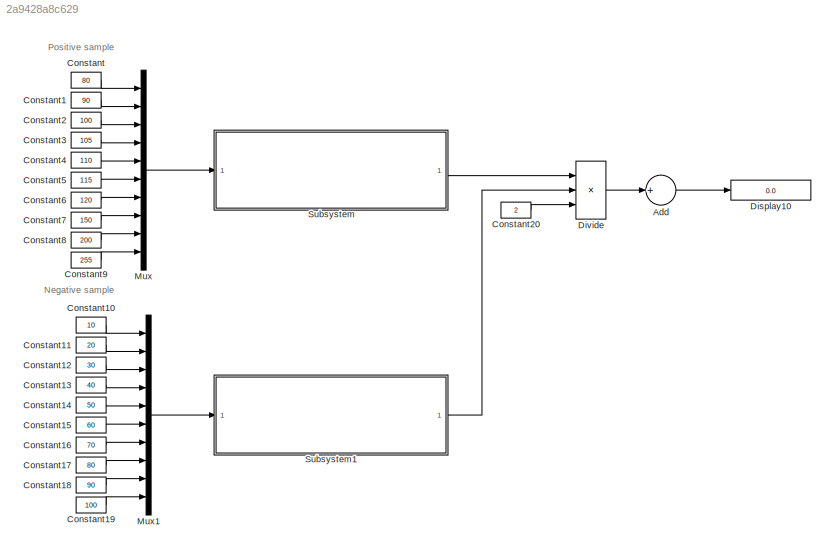
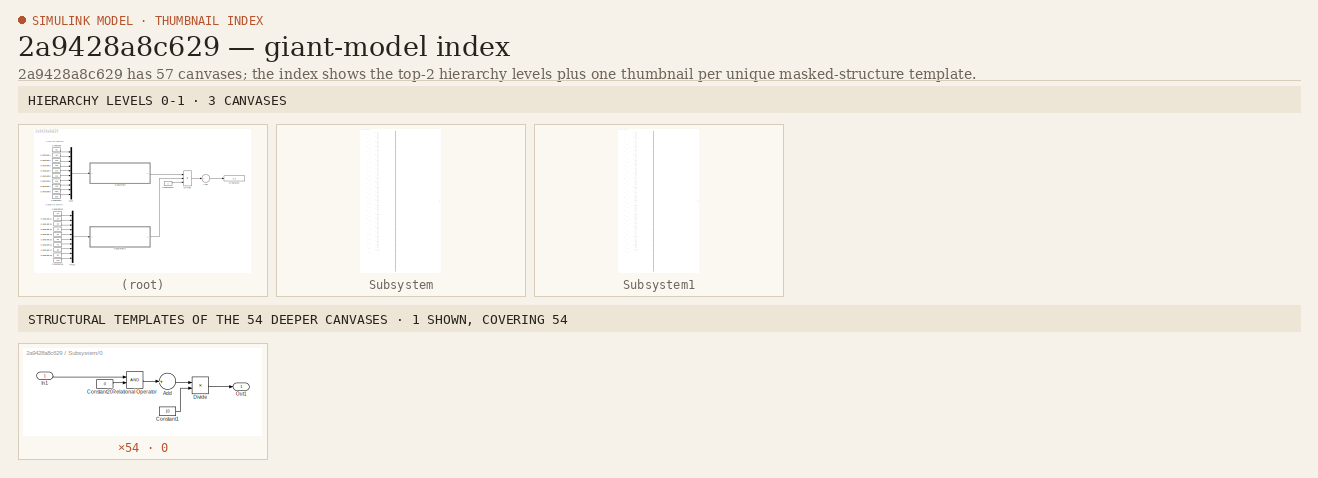
[diagram: thumbnail index - top-2 hierarchy levels (3 canvases) + 1 structural-template representatives of the remaining 54 canvases]
MODEL slx_2a9428a8c629
KIND model
CONFIG AbsTol = auto
CONFIG EnableMultiTasking = off
CONFIG FixedStep = auto
CONFIG MaxStep = auto
CONFIG MinStep = auto
CONFIG RelTol = 1e-3
CONFIG SampleTimeConstraint = Unconstrained
CONFIG Solver = VariableStepAuto
CONFIG SolverName = VariableStepAuto
CONFIG StartTime = 0.0
CONFIG StopTime = 10.0
BLOCK [Sum] Add
  InputSameDT = off
  Inputs = +
  OutDataTypeStr = Inherit: Inherit via internal rule
  Ports = [1, 1]
  SaturateOnIntegerOverflow = off
BLOCK [Constant] Constant
  Value = 80
BLOCK [Constant] Constant1
  Value = 90
BLOCK [Constant] Constant10
  Value = 10
BLOCK [Constant] Constant11
  Value = 20
BLOCK [Constant] Constant12
  Value = 30
BLOCK [Constant] Constant13
  Value = 40
BLOCK [Constant] Constant14
  Value = 50
BLOCK [Constant] Constant15
  Value = 60
BLOCK [Constant] Constant16
  Value = 70
BLOCK [Constant] Constant17
  Value = 80
BLOCK [Constant] Constant18
  Value = 90
BLOCK [Constant] Constant19
  Value = 100
BLOCK [Constant] Constant2
  Value = 100
BLOCK [Constant] Constant20
  Value = 2
BLOCK [Constant] Constant3
  Value = 105
BLOCK [Constant] Constant4
  Value = 110
BLOCK [Constant] Constant5
  Value = 115
BLOCK [Constant] Constant6
  Value = 120
BLOCK [Constant] Constant7
  Value = 150
BLOCK [Constant] Constant8
  Value = 200
BLOCK [Constant] Constant9
  Value = 255
BLOCK [Display] Display10
  Decimation = 1
  Ports = [1]
BLOCK [Product] Divide
  InputSameDT = off
  Inputs = **/
  OutDataTypeStr = Inherit: Inherit via internal rule
  Ports = [3, 1]
  RndMeth = Floor
  SaturateOnIntegerOverflow = off
BLOCK [Mux] Mux
  DisplayOption = bar
  Inputs = 10
  Ports = [10, 1]
BLOCK [Mux] Mux1
  DisplayOption = bar
  Inputs = 10
  Ports = [10, 1]
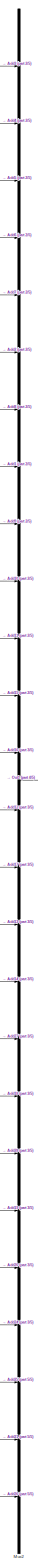
[diagram: Subsystem - part 1/5, center side, full height]
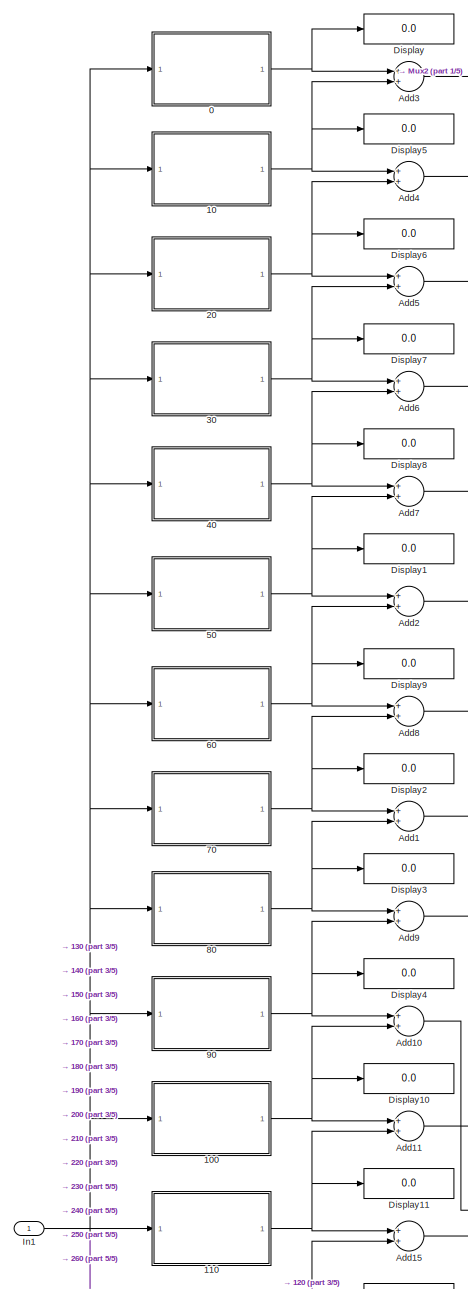
[diagram: Subsystem - part 2/5, top left region]
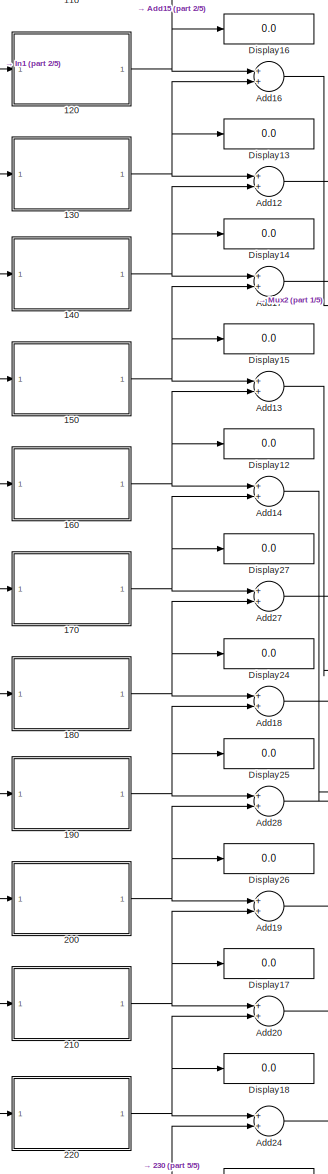
[diagram: Subsystem - part 3/5, middle left region]
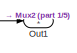
[diagram: Subsystem - part 4/5, middle right region]
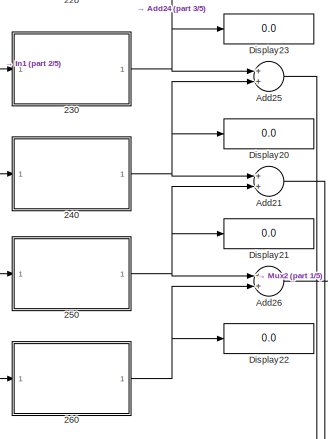
[diagram: Subsystem - part 5/5, bottom left region]
BLOCK [SubSystem] Subsystem
  Ports = [1, 1]
  RequestExecContextInheritance = off
BLOCK [SubSystem] Subsystem/0
  Ports = [1, 1]
  RequestExecContextInheritance = off
BLOCK [Sum] Subsystem/0/Add
  InputSameDT = off
  Inputs = +
  OutDataTypeStr = Inherit: Inherit via internal rule
  Ports = [1, 1]
  SaturateOnIntegerOverflow = off
BLOCK [Constant] Subsystem/0/Constant1
  Value = 10
BLOCK [Constant] Subsystem/0/Constant20
  Value = 0
BLOCK [Product] Subsystem/0/Divide
  InputSameDT = off
  Inputs = */
  OutDataTypeStr = Inherit: Inherit via internal rule
  Ports = [2, 1]
  RndMeth = Floor
  SaturateOnIntegerOverflow = off
BLOCK [Inport] Subsystem/0/In1
  IconDisplay = Port number
BLOCK [Outport] Subsystem/0/Out1
  IconDisplay = Port number
BLOCK [RelationalOperator] Subsystem/0/Relational Operator
  InputSameDT = off
  OutDataTypeStr = boolean
  Ports = [2, 1]
  RndMeth = Simplest
BLOCK [SubSystem] Subsystem/10
  Ports = [1, 1]
  RequestExecContextInheritance = off
BLOCK [Sum] Subsystem/10/Add
  InputSameDT = off
  Inputs = +
  OutDataTypeStr = Inherit: Inherit via internal rule
  Ports = [1, 1]
  SaturateOnIntegerOverflow = off
BLOCK [Constant] Subsystem/10/Constant1
  Value = 10
BLOCK [Constant] Subsystem/10/Constant20
  Value = 10
BLOCK [Product] Subsystem/10/Divide
  InputSameDT = off
  Inputs = */
  OutDataTypeStr = Inherit: Inherit via internal rule
  Ports = [2, 1]
  RndMeth = Floor
  SaturateOnIntegerOverflow = off
BLOCK [Inport] Subsystem/10/In1
  IconDisplay = Port number
BLOCK [Outport] Subsystem/10/Out1
  IconDisplay = Port number
BLOCK [RelationalOperator] Subsystem/10/Relational Operator
  InputSameDT = off
  OutDataTypeStr = boolean
  Ports = [2, 1]
  RndMeth = Simplest
BLOCK [SubSystem] Subsystem/100
  Ports = [1, 1]
  RequestExecContextInheritance = off
BLOCK [Sum] Subsystem/100/Add
  InputSameDT = off
  Inputs = +
  OutDataTypeStr = Inherit: Inherit via internal rule
  Ports = [1, 1]
  SaturateOnIntegerOverflow = off
BLOCK [Constant] Subsystem/100/Constant1
  Value = 10
BLOCK [Constant] Subsystem/100/Constant20
  Value = 100
BLOCK [Product] Subsystem/100/Divide
  InputSameDT = off
  Inputs = */
  OutDataTypeStr = Inherit: Inherit via internal rule
  Ports = [2, 1]
  RndMeth = Floor
  SaturateOnIntegerOverflow = off
BLOCK [Inport] Subsystem/100/In1
  IconDisplay = Port number
BLOCK [Outport] Subsystem/100/Out1
  IconDisplay = Port number
BLOCK [RelationalOperator] Subsystem/100/Relational Operator
  InputSameDT = off
  OutDataTypeStr = boolean
  Ports = [2, 1]
  RndMeth = Simplest
BLOCK [SubSystem] Subsystem/110
  Ports = [1, 1]
  RequestExecContextInheritance = off
BLOCK [Sum] Subsystem/110/Add
  InputSameDT = off
  Inputs = +
  OutDataTypeStr = Inherit: Inherit via internal rule
  Ports = [1, 1]
  SaturateOnIntegerOverflow = off
BLOCK [Constant] Subsystem/110/Constant1
  Value = 10
BLOCK [Constant] Subsystem/110/Constant20
  Value = 110
BLOCK [Product] Subsystem/110/Divide
  InputSameDT = off
  Inputs = */
  OutDataTypeStr = Inherit: Inherit via internal rule
  Ports = [2, 1]
  RndMeth = Floor
  SaturateOnIntegerOverflow = off
BLOCK [Inport] Subsystem/110/In1
  IconDisplay = Port number
BLOCK [Outport] Subsystem/110/Out1
  IconDisplay = Port number
BLOCK [RelationalOperator] Subsystem/110/Relational Operator
  InputSameDT = off
  OutDataTypeStr = boolean
  Ports = [2, 1]
  RndMeth = Simplest
BLOCK [SubSystem] Subsystem/120
  Ports = [1, 1]
  RequestExecContextInheritance = off
BLOCK [Sum] Subsystem/120/Add
  InputSameDT = off
  Inputs = +
  OutDataTypeStr = Inherit: Inherit via internal rule
  Ports = [1, 1]
  SaturateOnIntegerOverflow = off
BLOCK [Constant] Subsystem/120/Constant1
  Value = 10
BLOCK [Constant] Subsystem/120/Constant20
  Value = 120
BLOCK [Product] Subsystem/120/Divide
  InputSameDT = off
  Inputs = */
  OutDataTypeStr = Inherit: Inherit via internal rule
  Ports = [2, 1]
  RndMeth = Floor
  SaturateOnIntegerOverflow = off
BLOCK [Inport] Subsystem/120/In1
  IconDisplay = Port number
BLOCK [Outport] Subsystem/120/Out1
  IconDisplay = Port number
BLOCK [RelationalOperator] Subsystem/120/Relational Operator
  InputSameDT = off
  OutDataTypeStr = boolean
  Ports = [2, 1]
  RndMeth = Simplest
BLOCK [SubSystem] Subsystem/130
  Ports = [1, 1]
  RequestExecContextInheritance = off
BLOCK [Sum] Subsystem/130/Add
  InputSameDT = off
  Inputs = +
  OutDataTypeStr = Inherit: Inherit via internal rule
  Ports = [1, 1]
  SaturateOnIntegerOverflow = off
BLOCK [Constant] Subsystem/130/Constant1
  Value = 10
BLOCK [Constant] Subsystem/130/Constant20
  Value = 130
BLOCK [Product] Subsystem/130/Divide
  InputSameDT = off
  Inputs = */
  OutDataTypeStr = Inherit: Inherit via internal rule
  Ports = [2, 1]
  RndMeth = Floor
  SaturateOnIntegerOverflow = off
BLOCK [Inport] Subsystem/130/In1
  IconDisplay = Port number
BLOCK [Outport] Subsystem/130/Out1
  IconDisplay = Port number
BLOCK [RelationalOperator] Subsystem/130/Relational Operator
  InputSameDT = off
  OutDataTypeStr = boolean
  Ports = [2, 1]
  RndMeth = Simplest
BLOCK [SubSystem] Subsystem/140
  Ports = [1, 1]
  RequestExecContextInheritance = off
BLOCK [Sum] Subsystem/140/Add
  InputSameDT = off
  Inputs = +
  OutDataTypeStr = Inherit: Inherit via internal rule
  Ports = [1, 1]
  SaturateOnIntegerOverflow = off
BLOCK [Constant] Subsystem/140/Constant1
  Value = 10
BLOCK [Constant] Subsystem/140/Constant20
  Value = 140
BLOCK [Product] Subsystem/140/Divide
  InputSameDT = off
  Inputs = */
  OutDataTypeStr = Inherit: Inherit via internal rule
  Ports = [2, 1]
  RndMeth = Floor
  SaturateOnIntegerOverflow = off
BLOCK [Inport] Subsystem/140/In1
  IconDisplay = Port number
BLOCK [Outport] Subsystem/140/Out1
  IconDisplay = Port number
BLOCK [RelationalOperator] Subsystem/140/Relational Operator
  InputSameDT = off
  OutDataTypeStr = boolean
  Ports = [2, 1]
  RndMeth = Simplest
BLOCK [SubSystem] Subsystem/150
  Ports = [1, 1]
  RequestExecContextInheritance = off
BLOCK [Sum] Subsystem/150/Add
  InputSameDT = off
  Inputs = +
  OutDataTypeStr = Inherit: Inherit via internal rule
  Ports = [1, 1]
  SaturateOnIntegerOverflow = off
BLOCK [Constant] Subsystem/150/Constant1
  Value = 10
BLOCK [Constant] Subsystem/150/Constant20
  Value = 150
BLOCK [Product] Subsystem/150/Divide
  InputSameDT = off
  Inputs = */
  OutDataTypeStr = Inherit: Inherit via internal rule
  Ports = [2, 1]
  RndMeth = Floor
  SaturateOnIntegerOverflow = off
BLOCK [Inport] Subsystem/150/In1
  IconDisplay = Port number
BLOCK [Outport] Subsystem/150/Out1
  IconDisplay = Port number
BLOCK [RelationalOperator] Subsystem/150/Relational Operator
  InputSameDT = off
  OutDataTypeStr = boolean
  Ports = [2, 1]
  RndMeth = Simplest
BLOCK [SubSystem] Subsystem/160
  Ports = [1, 1]
  RequestExecContextInheritance = off
BLOCK [Sum] Subsystem/160/Add
  InputSameDT = off
  Inputs = +
  OutDataTypeStr = Inherit: Inherit via internal rule
  Ports = [1, 1]
  SaturateOnIntegerOverflow = off
BLOCK [Constant] Subsystem/160/Constant1
  Value = 10
BLOCK [Constant] Subsystem/160/Constant20
  Value = 160
BLOCK [Product] Subsystem/160/Divide
  InputSameDT = off
  Inputs = */
  OutDataTypeStr = Inherit: Inherit via internal rule
  Ports = [2, 1]
  RndMeth = Floor
  SaturateOnIntegerOverflow = off
BLOCK [Inport] Subsystem/160/In1
  IconDisplay = Port number
BLOCK [Outport] Subsystem/160/Out1
  IconDisplay = Port number
BLOCK [RelationalOperator] Subsystem/160/Relational Operator
  InputSameDT = off
  OutDataTypeStr = boolean
  Ports = [2, 1]
  RndMeth = Simplest
BLOCK [SubSystem] Subsystem/170
  Ports = [1, 1]
  RequestExecContextInheritance = off
BLOCK [Sum] Subsystem/170/Add
  InputSameDT = off
  Inputs = +
  OutDataTypeStr = Inherit: Inherit via internal rule
  Ports = [1, 1]
  SaturateOnIntegerOverflow = off
BLOCK [Constant] Subsystem/170/Constant1
  Value = 10
BLOCK [Constant] Subsystem/170/Constant20
  Value = 170
BLOCK [Product] Subsystem/170/Divide
  InputSameDT = off
  Inputs = */
  OutDataTypeStr = Inherit: Inherit via internal rule
  Ports = [2, 1]
  RndMeth = Floor
  SaturateOnIntegerOverflow = off
BLOCK [Inport] Subsystem/170/In1
  IconDisplay = Port number
BLOCK [Outport] Subsystem/170/Out1
  IconDisplay = Port number
BLOCK [RelationalOperator] Subsystem/170/Relational Operator
  InputSameDT = off
  OutDataTypeStr = boolean
  Ports = [2, 1]
  RndMeth = Simplest
BLOCK [SubSystem] Subsystem/180
  Ports = [1, 1]
  RequestExecContextInheritance = off
BLOCK [Sum] Subsystem/180/Add
  InputSameDT = off
  Inputs = +
  OutDataTypeStr = Inherit: Inherit via internal rule
  Ports = [1, 1]
  SaturateOnIntegerOverflow = off
BLOCK [Constant] Subsystem/180/Constant1
  Value = 10
BLOCK [Constant] Subsystem/180/Constant20
  Value = 180
BLOCK [Product] Subsystem/180/Divide
  InputSameDT = off
  Inputs = */
  OutDataTypeStr = Inherit: Inherit via internal rule
  Ports = [2, 1]
  RndMeth = Floor
  SaturateOnIntegerOverflow = off
BLOCK [Inport] Subsystem/180/In1
  IconDisplay = Port number
BLOCK [Outport] Subsystem/180/Out1
  IconDisplay = Port number
BLOCK [RelationalOperator] Subsystem/180/Relational Operator
  InputSameDT = off
  OutDataTypeStr = boolean
  Ports = [2, 1]
  RndMeth = Simplest
BLOCK [SubSystem] Subsystem/190
  Ports = [1, 1]
  RequestExecContextInheritance = off
BLOCK [Sum] Subsystem/190/Add
  InputSameDT = off
  Inputs = +
  OutDataTypeStr = Inherit: Inherit via internal rule
  Ports = [1, 1]
  SaturateOnIntegerOverflow = off
BLOCK [Constant] Subsystem/190/Constant1
  Value = 10
BLOCK [Constant] Subsystem/190/Constant20
  Value = 190
BLOCK [Product] Subsystem/190/Divide
  InputSameDT = off
  Inputs = */
  OutDataTypeStr = Inherit: Inherit via internal rule
  Ports = [2, 1]
  RndMeth = Floor
  SaturateOnIntegerOverflow = off
BLOCK [Inport] Subsystem/190/In1
  IconDisplay = Port number
BLOCK [Outport] Subsystem/190/Out1
  IconDisplay = Port number
BLOCK [RelationalOperator] Subsystem/190/Relational Operator
  InputSameDT = off
  OutDataTypeStr = boolean
  Ports = [2, 1]
  RndMeth = Simplest
BLOCK [SubSystem] Subsystem/20
  Ports = [1, 1]
  RequestExecContextInheritance = off
BLOCK [Sum] Subsystem/20/Add
  InputSameDT = off
  Inputs = +
  OutDataTypeStr = Inherit: Inherit via internal rule
  Ports = [1, 1]
  SaturateOnIntegerOverflow = off
BLOCK [Constant] Subsystem/20/Constant1
  Value = 10
BLOCK [Constant] Subsystem/20/Constant20
  Value = 20
BLOCK [Product] Subsystem/20/Divide
  InputSameDT = off
  Inputs = */
  OutDataTypeStr = Inherit: Inherit via internal rule
  Ports = [2, 1]
  RndMeth = Floor
  SaturateOnIntegerOverflow = off
BLOCK [Inport] Subsystem/20/In1
  IconDisplay = Port number
BLOCK [Outport] Subsystem/20/Out1
  IconDisplay = Port number
BLOCK [RelationalOperator] Subsystem/20/Relational Operator
  InputSameDT = off
  OutDataTypeStr = boolean
  Ports = [2, 1]
  RndMeth = Simplest
BLOCK [SubSystem] Subsystem/200
  Ports = [1, 1]
  RequestExecContextInheritance = off
BLOCK [Sum] Subsystem/200/Add
  InputSameDT = off
  Inputs = +
  OutDataTypeStr = Inherit: Inherit via internal rule
  Ports = [1, 1]
  SaturateOnIntegerOverflow = off
BLOCK [Constant] Subsystem/200/Constant1
  Value = 10
BLOCK [Constant] Subsystem/200/Constant20
  Value = 200
BLOCK [Product] Subsystem/200/Divide
  InputSameDT = off
  Inputs = */
  OutDataTypeStr = Inherit: Inherit via internal rule
  Ports = [2, 1]
  RndMeth = Floor
  SaturateOnIntegerOverflow = off
BLOCK [Inport] Subsystem/200/In1
  IconDisplay = Port number
BLOCK [Outport] Subsystem/200/Out1
  IconDisplay = Port number
BLOCK [RelationalOperator] Subsystem/200/Relational Operator
  InputSameDT = off
  OutDataTypeStr = boolean
  Ports = [2, 1]
  RndMeth = Simplest
BLOCK [SubSystem] Subsystem/210
  Ports = [1, 1]
  RequestExecContextInheritance = off
BLOCK [Sum] Subsystem/210/Add
  InputSameDT = off
  Inputs = +
  OutDataTypeStr = Inherit: Inherit via internal rule
  Ports = [1, 1]
  SaturateOnIntegerOverflow = off
BLOCK [Constant] Subsystem/210/Constant1
  Value = 10
BLOCK [Constant] Subsystem/210/Constant20
  Value = 210
BLOCK [Product] Subsystem/210/Divide
  InputSameDT = off
  Inputs = */
  OutDataTypeStr = Inherit: Inherit via internal rule
  Ports = [2, 1]
  RndMeth = Floor
  SaturateOnIntegerOverflow = off
BLOCK [Inport] Subsystem/210/In1
  IconDisplay = Port number
BLOCK [Outport] Subsystem/210/Out1
  IconDisplay = Port number
BLOCK [RelationalOperator] Subsystem/210/Relational Operator
  InputSameDT = off
  OutDataTypeStr = boolean
  Ports = [2, 1]
  RndMeth = Simplest
BLOCK [SubSystem] Subsystem/220
  Ports = [1, 1]
  RequestExecContextInheritance = off
BLOCK [Sum] Subsystem/220/Add
  InputSameDT = off
  Inputs = +
  OutDataTypeStr = Inherit: Inherit via internal rule
  Ports = [1, 1]
  SaturateOnIntegerOverflow = off
BLOCK [Constant] Subsystem/220/Constant1
  Value = 10
BLOCK [Constant] Subsystem/220/Constant20
  Value = 220
BLOCK [Product] Subsystem/220/Divide
  InputSameDT = off
  Inputs = */
  OutDataTypeStr = Inherit: Inherit via internal rule
  Ports = [2, 1]
  RndMeth = Floor
  SaturateOnIntegerOverflow = off
BLOCK [Inport] Subsystem/220/In1
  IconDisplay = Port number
BLOCK [Outport] Subsystem/220/Out1
  IconDisplay = Port number
BLOCK [RelationalOperator] Subsystem/220/Relational Operator
  InputSameDT = off
  OutDataTypeStr = boolean
  Ports = [2, 1]
  RndMeth = Simplest
BLOCK [SubSystem] Subsystem/230
  Ports = [1, 1]
  RequestExecContextInheritance = off
BLOCK [Sum] Subsystem/230/Add
  InputSameDT = off
  Inputs = +
  OutDataTypeStr = Inherit: Inherit via internal rule
  Ports = [1, 1]
  SaturateOnIntegerOverflow = off
BLOCK [Constant] Subsystem/230/Constant1
  Value = 10
BLOCK [Constant] Subsystem/230/Constant20
  Value = 230
BLOCK [Product] Subsystem/230/Divide
  InputSameDT = off
  Inputs = */
  OutDataTypeStr = Inherit: Inherit via internal rule
  Ports = [2, 1]
  RndMeth = Floor
  SaturateOnIntegerOverflow = off
BLOCK [Inport] Subsystem/230/In1
  IconDisplay = Port number
BLOCK [Outport] Subsystem/230/Out1
  IconDisplay = Port number
BLOCK [RelationalOperator] Subsystem/230/Relational Operator
  InputSameDT = off
  OutDataTypeStr = boolean
  Ports = [2, 1]
  RndMeth = Simplest
BLOCK [SubSystem] Subsystem/240
  Ports = [1, 1]
  RequestExecContextInheritance = off
BLOCK [Sum] Subsystem/240/Add
  InputSameDT = off
  Inputs = +
  OutDataTypeStr = Inherit: Inherit via internal rule
  Ports = [1, 1]
  SaturateOnIntegerOverflow = off
BLOCK [Constant] Subsystem/240/Constant1
  Value = 10
BLOCK [Constant] Subsystem/240/Constant20
  Value = 240
BLOCK [Product] Subsystem/240/Divide
  InputSameDT = off
  Inputs = */
  OutDataTypeStr = Inherit: Inherit via internal rule
  Ports = [2, 1]
  RndMeth = Floor
  SaturateOnIntegerOverflow = off
BLOCK [Inport] Subsystem/240/In1
  IconDisplay = Port number
BLOCK [Outport] Subsystem/240/Out1
  IconDisplay = Port number
BLOCK [RelationalOperator] Subsystem/240/Relational Operator
  InputSameDT = off
  OutDataTypeStr = boolean
  Ports = [2, 1]
  RndMeth = Simplest
BLOCK [SubSystem] Subsystem/250
  Ports = [1, 1]
  RequestExecContextInheritance = off
BLOCK [Sum] Subsystem/250/Add
  InputSameDT = off
  Inputs = +
  OutDataTypeStr = Inherit: Inherit via internal rule
  Ports = [1, 1]
  SaturateOnIntegerOverflow = off
BLOCK [Constant] Subsystem/250/Constant1
  Value = 10
BLOCK [Constant] Subsystem/250/Constant20
  Value = 250
BLOCK [Product] Subsystem/250/Divide
  InputSameDT = off
  Inputs = */
  OutDataTypeStr = Inherit: Inherit via internal rule
  Ports = [2, 1]
  RndMeth = Floor
  SaturateOnIntegerOverflow = off
BLOCK [Inport] Subsystem/250/In1
  IconDisplay = Port number
BLOCK [Outport] Subsystem/250/Out1
  IconDisplay = Port number
BLOCK [RelationalOperator] Subsystem/250/Relational Operator
  InputSameDT = off
  OutDataTypeStr = boolean
  Ports = [2, 1]
  RndMeth = Simplest
BLOCK [SubSystem] Subsystem/260
  Ports = [1, 1]
  RequestExecContextInheritance = off
BLOCK [Sum] Subsystem/260/Add
  InputSameDT = off
  Inputs = +
  OutDataTypeStr = Inherit: Inherit via internal rule
  Ports = [1, 1]
  SaturateOnIntegerOverflow = off
BLOCK [Constant] Subsystem/260/Constant1
  Value = 10
BLOCK [Constant] Subsystem/260/Constant20
  Value = 260
BLOCK [Product] Subsystem/260/Divide
  InputSameDT = off
  Inputs = */
  OutDataTypeStr = Inherit: Inherit via internal rule
  Ports = [2, 1]
  RndMeth = Floor
  SaturateOnIntegerOverflow = off
BLOCK [Inport] Subsystem/260/In1
  IconDisplay = Port number
BLOCK [Outport] Subsystem/260/Out1
  IconDisplay = Port number
BLOCK [RelationalOperator] Subsystem/260/Relational Operator
  InputSameDT = off
  OutDataTypeStr = boolean
  Ports = [2, 1]
  RndMeth = Simplest
BLOCK [SubSystem] Subsystem/30
  Ports = [1, 1]
  RequestExecContextInheritance = off
BLOCK [Sum] Subsystem/30/Add
  InputSameDT = off
  Inputs = +
  OutDataTypeStr = Inherit: Inherit via internal rule
  Ports = [1, 1]
  SaturateOnIntegerOverflow = off
BLOCK [Constant] Subsystem/30/Constant1
  Value = 10
BLOCK [Constant] Subsystem/30/Constant20
  Value = 30
BLOCK [Product] Subsystem/30/Divide
  InputSameDT = off
  Inputs = */
  OutDataTypeStr = Inherit: Inherit via internal rule
  Ports = [2, 1]
  RndMeth = Floor
  SaturateOnIntegerOverflow = off
BLOCK [Inport] Subsystem/30/In1
  IconDisplay = Port number
BLOCK [Outport] Subsystem/30/Out1
  IconDisplay = Port number
BLOCK [RelationalOperator] Subsystem/30/Relational Operator
  InputSameDT = off
  OutDataTypeStr = boolean
  Ports = [2, 1]
  RndMeth = Simplest
BLOCK [SubSystem] Subsystem/40
  Ports = [1, 1]
  RequestExecContextInheritance = off
BLOCK [Sum] Subsystem/40/Add
  InputSameDT = off
  Inputs = +
  OutDataTypeStr = Inherit: Inherit via internal rule
  Ports = [1, 1]
  SaturateOnIntegerOverflow = off
BLOCK [Constant] Subsystem/40/Constant1
  Value = 10
BLOCK [Constant] Subsystem/40/Constant20
  Value = 40
BLOCK [Product] Subsystem/40/Divide
  InputSameDT = off
  Inputs = */
  OutDataTypeStr = Inherit: Inherit via internal rule
  Ports = [2, 1]
  RndMeth = Floor
  SaturateOnIntegerOverflow = off
BLOCK [Inport] Subsystem/40/In1
  IconDisplay = Port number
BLOCK [Outport] Subsystem/40/Out1
  IconDisplay = Port number
BLOCK [RelationalOperator] Subsystem/40/Relational Operator
  InputSameDT = off
  OutDataTypeStr = boolean
  Ports = [2, 1]
  RndMeth = Simplest
BLOCK [SubSystem] Subsystem/50
  Ports = [1, 1]
  RequestExecContextInheritance = off
BLOCK [Sum] Subsystem/50/Add
  InputSameDT = off
  Inputs = +
  OutDataTypeStr = Inherit: Inherit via internal rule
  Ports = [1, 1]
  SaturateOnIntegerOverflow = off
BLOCK [Constant] Subsystem/50/Constant1
  Value = 10
BLOCK [Constant] Subsystem/50/Constant20
  Value = 50
BLOCK [Product] Subsystem/50/Divide
  InputSameDT = off
  Inputs = */
  OutDataTypeStr = Inherit: Inherit via internal rule
  Ports = [2, 1]
  RndMeth = Floor
  SaturateOnIntegerOverflow = off
BLOCK [Inport] Subsystem/50/In1
  IconDisplay = Port number
BLOCK [Outport] Subsystem/50/Out1
  IconDisplay = Port number
BLOCK [RelationalOperator] Subsystem/50/Relational Operator
  InputSameDT = off
  OutDataTypeStr = boolean
  Ports = [2, 1]
  RndMeth = Simplest
BLOCK [SubSystem] Subsystem/60
  Ports = [1, 1]
  RequestExecContextInheritance = off
BLOCK [Sum] Subsystem/60/Add
  InputSameDT = off
  Inputs = +
  OutDataTypeStr = Inherit: Inherit via internal rule
  Ports = [1, 1]
  SaturateOnIntegerOverflow = off
BLOCK [Constant] Subsystem/60/Constant1
  Value = 10
BLOCK [Constant] Subsystem/60/Constant20
  Value = 60
BLOCK [Product] Subsystem/60/Divide
  InputSameDT = off
  Inputs = */
  OutDataTypeStr = Inherit: Inherit via internal rule
  Ports = [2, 1]
  RndMeth = Floor
  SaturateOnIntegerOverflow = off
BLOCK [Inport] Subsystem/60/In1
  IconDisplay = Port number
BLOCK [Outport] Subsystem/60/Out1
  IconDisplay = Port number
BLOCK [RelationalOperator] Subsystem/60/Relational Operator
  InputSameDT = off
  OutDataTypeStr = boolean
  Ports = [2, 1]
  RndMeth = Simplest
BLOCK [SubSystem] Subsystem/70
  Ports = [1, 1]
  RequestExecContextInheritance = off
BLOCK [Sum] Subsystem/70/Add
  InputSameDT = off
  Inputs = +
  OutDataTypeStr = Inherit: Inherit via internal rule
  Ports = [1, 1]
  SaturateOnIntegerOverflow = off
BLOCK [Constant] Subsystem/70/Constant1
  Value = 10
BLOCK [Constant] Subsystem/70/Constant20
  Value = 70
BLOCK [Product] Subsystem/70/Divide
  InputSameDT = off
  Inputs = */
  OutDataTypeStr = Inherit: Inherit via internal rule
  Ports = [2, 1]
  RndMeth = Floor
  SaturateOnIntegerOverflow = off
BLOCK [Inport] Subsystem/70/In1
  IconDisplay = Port number
BLOCK [Outport] Subsystem/70/Out1
  IconDisplay = Port number
BLOCK [RelationalOperator] Subsystem/70/Relational Operator
  InputSameDT = off
  OutDataTypeStr = boolean
  Ports = [2, 1]
  RndMeth = Simplest
BLOCK [SubSystem] Subsystem/80
  Ports = [1, 1]
  RequestExecContextInheritance = off
BLOCK [Sum] Subsystem/80/Add
  InputSameDT = off
  Inputs = +
  OutDataTypeStr = Inherit: Inherit via internal rule
  Ports = [1, 1]
  SaturateOnIntegerOverflow = off
BLOCK [Constant] Subsystem/80/Constant1
  Value = 10
BLOCK [Constant] Subsystem/80/Constant20
  Value = 80
BLOCK [Product] Subsystem/80/Divide
  InputSameDT = off
  Inputs = */
  OutDataTypeStr = Inherit: Inherit via internal rule
  Ports = [2, 1]
  RndMeth = Floor
  SaturateOnIntegerOverflow = off
BLOCK [Inport] Subsystem/80/In1
  IconDisplay = Port number
BLOCK [Outport] Subsystem/80/Out1
  IconDisplay = Port number
BLOCK [RelationalOperator] Subsystem/80/Relational Operator
  InputSameDT = off
  OutDataTypeStr = boolean
  Ports = [2, 1]
  RndMeth = Simplest
BLOCK [SubSystem] Subsystem/90
  Ports = [1, 1]
  RequestExecContextInheritance = off
BLOCK [Sum] Subsystem/90/Add
  InputSameDT = off
  Inputs = +
  OutDataTypeStr = Inherit: Inherit via internal rule
  Ports = [1, 1]
  SaturateOnIntegerOverflow = off
BLOCK [Constant] Subsystem/90/Constant1
  Value = 10
BLOCK [Constant] Subsystem/90/Constant20
  Value = 90
BLOCK [Product] Subsystem/90/Divide
  InputSameDT = off
  Inputs = */
  OutDataTypeStr = Inherit: Inherit via internal rule
  Ports = [2, 1]
  RndMeth = Floor
  SaturateOnIntegerOverflow = off
BLOCK [Inport] Subsystem/90/In1
  IconDisplay = Port number
BLOCK [Outport] Subsystem/90/Out1
  IconDisplay = Port number
BLOCK [RelationalOperator] Subsystem/90/Relational Operator
  InputSameDT = off
  OutDataTypeStr = boolean
  Ports = [2, 1]
  RndMeth = Simplest
BLOCK [Sum] Subsystem/Add1
  InputSameDT = off
  OutDataTypeStr = Inherit: Inherit via internal rule
  Ports = [2, 1]
  SaturateOnIntegerOverflow = off
BLOCK [Sum] Subsystem/Add10
  InputSameDT = off
  OutDataTypeStr = Inherit: Inherit via internal rule
  Ports = [2, 1]
  SaturateOnIntegerOverflow = off
BLOCK [Sum] Subsystem/Add11
  InputSameDT = off
  OutDataTypeStr = Inherit: Inherit via internal rule
  Ports = [2, 1]
  SaturateOnIntegerOverflow = off
BLOCK [Sum] Subsystem/Add12
  InputSameDT = off
  OutDataTypeStr = Inherit: Inherit via internal rule
  Ports = [2, 1]
  SaturateOnIntegerOverflow = off
BLOCK [Sum] Subsystem/Add13
  InputSameDT = off
  OutDataTypeStr = Inherit: Inherit via internal rule
  Ports = [2, 1]
  SaturateOnIntegerOverflow = off
BLOCK [Sum] Subsystem/Add14
  InputSameDT = off
  OutDataTypeStr = Inherit: Inherit via internal rule
  Ports = [2, 1]
  SaturateOnIntegerOverflow = off
BLOCK [Sum] Subsystem/Add15
  InputSameDT = off
  OutDataTypeStr = Inherit: Inherit via internal rule
  Ports = [2, 1]
  SaturateOnIntegerOverflow = off
BLOCK [Sum] Subsystem/Add16
  InputSameDT = off
  OutDataTypeStr = Inherit: Inherit via internal rule
  Ports = [2, 1]
  SaturateOnIntegerOverflow = off
BLOCK [Sum] Subsystem/Add17
  InputSameDT = off
  OutDataTypeStr = Inherit: Inherit via internal rule
  Ports = [2, 1]
  SaturateOnIntegerOverflow = off
BLOCK [Sum] Subsystem/Add18
  InputSameDT = off
  OutDataTypeStr = Inherit: Inherit via internal rule
  Ports = [2, 1]
  SaturateOnIntegerOverflow = off
BLOCK [Sum] Subsystem/Add19
  InputSameDT = off
  OutDataTypeStr = Inherit: Inherit via internal rule
  Ports = [2, 1]
  SaturateOnIntegerOverflow = off
BLOCK [Sum] Subsystem/Add2
  InputSameDT = off
  OutDataTypeStr = Inherit: Inherit via internal rule
  Ports = [2, 1]
  SaturateOnIntegerOverflow = off
BLOCK [Sum] Subsystem/Add20
  InputSameDT = off
  OutDataTypeStr = Inherit: Inherit via internal rule
  Ports = [2, 1]
  SaturateOnIntegerOverflow = off
BLOCK [Sum] Subsystem/Add21
  InputSameDT = off
  OutDataTypeStr = Inherit: Inherit via internal rule
  Ports = [2, 1]
  SaturateOnIntegerOverflow = off
BLOCK [Sum] Subsystem/Add24
  InputSameDT = off
  OutDataTypeStr = Inherit: Inherit via internal rule
  Ports = [2, 1]
  SaturateOnIntegerOverflow = off
BLOCK [Sum] Subsystem/Add25
  InputSameDT = off
  OutDataTypeStr = Inherit: Inherit via internal rule
  Ports = [2, 1]
  SaturateOnIntegerOverflow = off
BLOCK [Sum] Subsystem/Add26
  InputSameDT = off
  OutDataTypeStr = Inherit: Inherit via internal rule
  Ports = [2, 1]
  SaturateOnIntegerOverflow = off
BLOCK [Sum] Subsystem/Add27
  InputSameDT = off
  OutDataTypeStr = Inherit: Inherit via internal rule
  Ports = [2, 1]
  SaturateOnIntegerOverflow = off
BLOCK [Sum] Subsystem/Add28
  InputSameDT = off
  OutDataTypeStr = Inherit: Inherit via internal rule
  Ports = [2, 1]
  SaturateOnIntegerOverflow = off
BLOCK [Sum] Subsystem/Add3
  InputSameDT = off
  OutDataTypeStr = Inherit: Inherit via internal rule
  Ports = [2, 1]
  SaturateOnIntegerOverflow = off
BLOCK [Sum] Subsystem/Add4
  InputSameDT = off
  OutDataTypeStr = Inherit: Inherit via internal rule
  Ports = [2, 1]
  SaturateOnIntegerOverflow = off
BLOCK [Sum] Subsystem/Add5
  InputSameDT = off
  OutDataTypeStr = Inherit: Inherit via internal rule
  Ports = [2, 1]
  SaturateOnIntegerOverflow = off
BLOCK [Sum] Subsystem/Add6
  InputSameDT = off
  OutDataTypeStr = Inherit: Inherit via internal rule
  Ports = [2, 1]
  SaturateOnIntegerOverflow = off
BLOCK [Sum] Subsystem/Add7
  InputSameDT = off
  OutDataTypeStr = Inherit: Inherit via internal rule
  Ports = [2, 1]
  SaturateOnIntegerOverflow = off
BLOCK [Sum] Subsystem/Add8
  InputSameDT = off
  OutDataTypeStr = Inherit: Inherit via internal rule
  Ports = [2, 1]
  SaturateOnIntegerOverflow = off
BLOCK [Sum] Subsystem/Add9
  InputSameDT = off
  OutDataTypeStr = Inherit: Inherit via internal rule
  Ports = [2, 1]
  SaturateOnIntegerOverflow = off
BLOCK [Display] Subsystem/Display
  Decimation = 1
  Ports = [1]
BLOCK [Display] Subsystem/Display1
  Decimation = 1
  Ports = [1]
BLOCK [Display] Subsystem/Display10
  Decimation = 1
  Ports = [1]
BLOCK [Display] Subsystem/Display11
  Decimation = 1
  Ports = [1]
BLOCK [Display] Subsystem/Display12
  Decimation = 1
  Ports = [1]
BLOCK [Display] Subsystem/Display13
  Decimation = 1
  Ports = [1]
BLOCK [Display] Subsystem/Display14
  Decimation = 1
  Ports = [1]
BLOCK [Display] Subsystem/Display15
  Decimation = 1
  Ports = [1]
BLOCK [Display] Subsystem/Display16
  Decimation = 1
  Ports = [1]
BLOCK [Display] Subsystem/Display17
  Decimation = 1
  Ports = [1]
BLOCK [Display] Subsystem/Display18
  Decimation = 1
  Ports = [1]
BLOCK [Display] Subsystem/Display2
  Decimation = 1
  Ports = [1]
BLOCK [Display] Subsystem/Display20
  Decimation = 1
  Ports = [1]
BLOCK [Display] Subsystem/Display21
  Decimation = 1
  Ports = [1]
BLOCK [Display] Subsystem/Display22
  Decimation = 1
  Ports = [1]
BLOCK [Display] Subsystem/Display23
  Decimation = 1
  Ports = [1]
BLOCK [Display] Subsystem/Display24
  Decimation = 1
  Ports = [1]
BLOCK [Display] Subsystem/Display25
  Decimation = 1
  Ports = [1]
BLOCK [Display] Subsystem/Display26
  Decimation = 1
  Ports = [1]
BLOCK [Display] Subsystem/Display27
  Decimation = 1
  Ports = [1]
BLOCK [Display] Subsystem/Display3
  Decimation = 1
  Ports = [1]
BLOCK [Display] Subsystem/Display4
  Decimation = 1
  Ports = [1]
BLOCK [Display] Subsystem/Display5
  Decimation = 1
  Ports = [1]
BLOCK [Display] Subsystem/Display6
  Decimation = 1
  Ports = [1]
BLOCK [Display] Subsystem/Display7
  Decimation = 1
  Ports = [1]
BLOCK [Display] Subsystem/Display8
  Decimation = 1
  Ports = [1]
BLOCK [Display] Subsystem/Display9
  Decimation = 1
  Ports = [1]
BLOCK [Inport] Subsystem/In1
  IconDisplay = Port number
BLOCK [Mux] Subsystem/Mux2
  DisplayOption = bar
  Inputs = 26
  Ports = [26, 1]
BLOCK [Outport] Subsystem/Out1
  IconDisplay = Port number
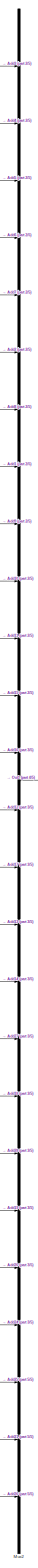
[diagram: Subsystem1 - part 1/5, center side, full height]
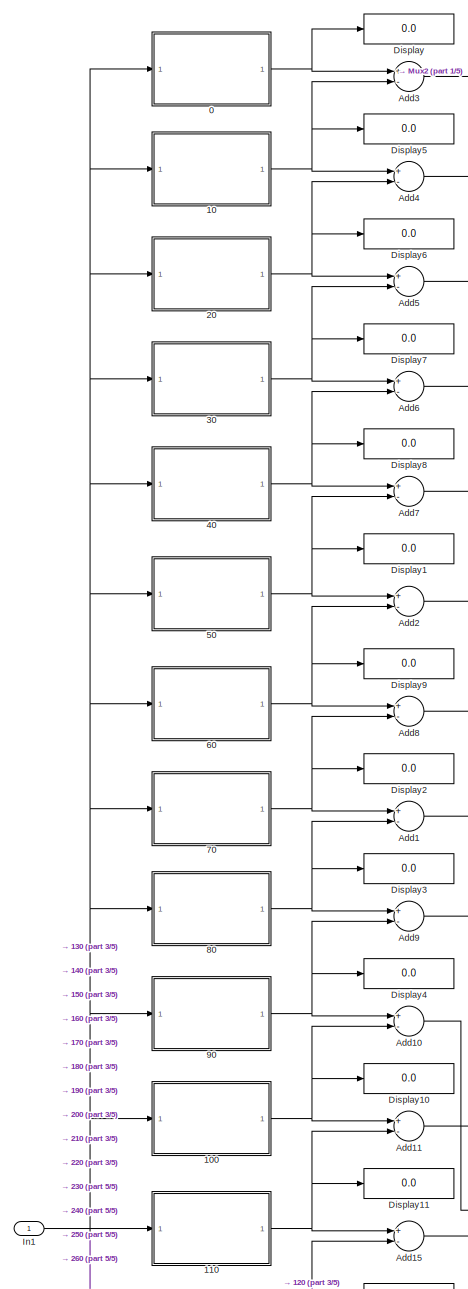
[diagram: Subsystem1 - part 2/5, top left region]
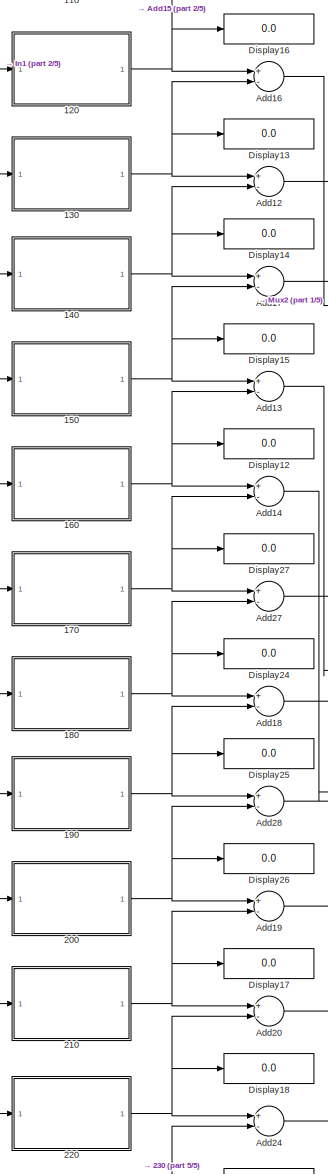
[diagram: Subsystem1 - part 3/5, middle left region]
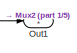
[diagram: Subsystem1 - part 4/5, middle right region]
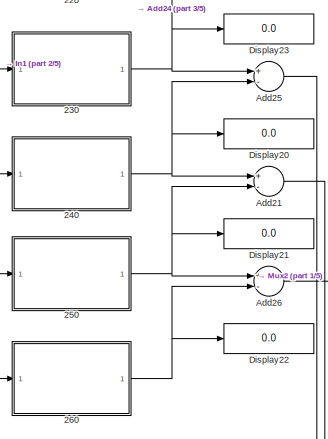
[diagram: Subsystem1 - part 5/5, bottom left region]
BLOCK [SubSystem] Subsystem1
  Ports = [1, 1]
  RequestExecContextInheritance = off
BLOCK [SubSystem] Subsystem1/0
  Ports = [1, 1]
  RequestExecContextInheritance = off
BLOCK [Sum] Subsystem1/0/Add
  InputSameDT = off
  Inputs = +
  OutDataTypeStr = Inherit: Inherit via internal rule
  Ports = [1, 1]
  SaturateOnIntegerOverflow = off
BLOCK [Constant] Subsystem1/0/Constant1
  Value = 10
BLOCK [Constant] Subsystem1/0/Constant20
  Value = 0
BLOCK [Product] Subsystem1/0/Divide
  InputSameDT = off
  Inputs = */
  OutDataTypeStr = Inherit: Inherit via internal rule
  Ports = [2, 1]
  RndMeth = Floor
  SaturateOnIntegerOverflow = off
BLOCK [Inport] Subsystem1/0/In1
  IconDisplay = Port number
BLOCK [Outport] Subsystem1/0/Out1
  IconDisplay = Port number
BLOCK [RelationalOperator] Subsystem1/0/Relational Operator
  InputSameDT = off
  OutDataTypeStr = boolean
  Ports = [2, 1]
  RndMeth = Simplest
BLOCK [SubSystem] Subsystem1/10
  Ports = [1, 1]
  RequestExecContextInheritance = off
BLOCK [Sum] Subsystem1/10/Add
  InputSameDT = off
  Inputs = +
  OutDataTypeStr = Inherit: Inherit via internal rule
  Ports = [1, 1]
  SaturateOnIntegerOverflow = off
BLOCK [Constant] Subsystem1/10/Constant1
  Value = 10
BLOCK [Constant] Subsystem1/10/Constant20
  Value = 10
BLOCK [Product] Subsystem1/10/Divide
  InputSameDT = off
  Inputs = */
  OutDataTypeStr = Inherit: Inherit via internal rule
  Ports = [2, 1]
  RndMeth = Floor
  SaturateOnIntegerOverflow = off
BLOCK [Inport] Subsystem1/10/In1
  IconDisplay = Port number
BLOCK [Outport] Subsystem1/10/Out1
  IconDisplay = Port number
BLOCK [RelationalOperator] Subsystem1/10/Relational Operator
  InputSameDT = off
  OutDataTypeStr = boolean
  Ports = [2, 1]
  RndMeth = Simplest
BLOCK [SubSystem] Subsystem1/100
  Ports = [1, 1]
  RequestExecContextInheritance = off
BLOCK [Sum] Subsystem1/100/Add
  InputSameDT = off
  Inputs = +
  OutDataTypeStr = Inherit: Inherit via internal rule
  Ports = [1, 1]
  SaturateOnIntegerOverflow = off
BLOCK [Constant] Subsystem1/100/Constant1
  Value = 10
BLOCK [Constant] Subsystem1/100/Constant20
  Value = 100
BLOCK [Product] Subsystem1/100/Divide
  InputSameDT = off
  Inputs = */
  OutDataTypeStr = Inherit: Inherit via internal rule
  Ports = [2, 1]
  RndMeth = Floor
  SaturateOnIntegerOverflow = off
BLOCK [Inport] Subsystem1/100/In1
  IconDisplay = Port number
BLOCK [Outport] Subsystem1/100/Out1
  IconDisplay = Port number
BLOCK [RelationalOperator] Subsystem1/100/Relational Operator
  InputSameDT = off
  OutDataTypeStr = boolean
  Ports = [2, 1]
  RndMeth = Simplest
BLOCK [SubSystem] Subsystem1/110
  Ports = [1, 1]
  RequestExecContextInheritance = off
BLOCK [Sum] Subsystem1/110/Add
  InputSameDT = off
  Inputs = +
  OutDataTypeStr = Inherit: Inherit via internal rule
  Ports = [1, 1]
  SaturateOnIntegerOverflow = off
BLOCK [Constant] Subsystem1/110/Constant1
  Value = 10
BLOCK [Constant] Subsystem1/110/Constant20
  Value = 110
BLOCK [Product] Subsystem1/110/Divide
  InputSameDT = off
  Inputs = */
  OutDataTypeStr = Inherit: Inherit via internal rule
  Ports = [2, 1]
  RndMeth = Floor
  SaturateOnIntegerOverflow = off
BLOCK [Inport] Subsystem1/110/In1
  IconDisplay = Port number
BLOCK [Outport] Subsystem1/110/Out1
  IconDisplay = Port number
BLOCK [RelationalOperator] Subsystem1/110/Relational Operator
  InputSameDT = off
  OutDataTypeStr = boolean
  Ports = [2, 1]
  RndMeth = Simplest
BLOCK [SubSystem] Subsystem1/120
  Ports = [1, 1]
  RequestExecContextInheritance = off
BLOCK [Sum] Subsystem1/120/Add
  InputSameDT = off
  Inputs = +
  OutDataTypeStr = Inherit: Inherit via internal rule
  Ports = [1, 1]
  SaturateOnIntegerOverflow = off
BLOCK [Constant] Subsystem1/120/Constant1
  Value = 10
BLOCK [Constant] Subsystem1/120/Constant20
  Value = 120
BLOCK [Product] Subsystem1/120/Divide
  InputSameDT = off
  Inputs = */
  OutDataTypeStr = Inherit: Inherit via internal rule
  Ports = [2, 1]
  RndMeth = Floor
  SaturateOnIntegerOverflow = off
BLOCK [Inport] Subsystem1/120/In1
  IconDisplay = Port number
BLOCK [Outport] Subsystem1/120/Out1
  IconDisplay = Port number
BLOCK [RelationalOperator] Subsystem1/120/Relational Operator
  InputSameDT = off
  OutDataTypeStr = boolean
  Ports = [2, 1]
  RndMeth = Simplest
BLOCK [SubSystem] Subsystem1/130
  Ports = [1, 1]
  RequestExecContextInheritance = off
BLOCK [Sum] Subsystem1/130/Add
  InputSameDT = off
  Inputs = +
  OutDataTypeStr = Inherit: Inherit via internal rule
  Ports = [1, 1]
  SaturateOnIntegerOverflow = off
BLOCK [Constant] Subsystem1/130/Constant1
  Value = 10
BLOCK [Constant] Subsystem1/130/Constant20
  Value = 130
BLOCK [Product] Subsystem1/130/Divide
  InputSameDT = off
  Inputs = */
  OutDataTypeStr = Inherit: Inherit via internal rule
  Ports = [2, 1]
  RndMeth = Floor
  SaturateOnIntegerOverflow = off
BLOCK [Inport] Subsystem1/130/In1
  IconDisplay = Port number
BLOCK [Outport] Subsystem1/130/Out1
  IconDisplay = Port number
BLOCK [RelationalOperator] Subsystem1/130/Relational Operator
  InputSameDT = off
  OutDataTypeStr = boolean
  Ports = [2, 1]
  RndMeth = Simplest
BLOCK [SubSystem] Subsystem1/140
  Ports = [1, 1]
  RequestExecContextInheritance = off
BLOCK [Sum] Subsystem1/140/Add
  InputSameDT = off
  Inputs = +
  OutDataTypeStr = Inherit: Inherit via internal rule
  Ports = [1, 1]
  SaturateOnIntegerOverflow = off
BLOCK [Constant] Subsystem1/140/Constant1
  Value = 10
BLOCK [Constant] Subsystem1/140/Constant20
  Value = 140
BLOCK [Product] Subsystem1/140/Divide
  InputSameDT = off
  Inputs = */
  OutDataTypeStr = Inherit: Inherit via internal rule
  Ports = [2, 1]
  RndMeth = Floor
  SaturateOnIntegerOverflow = off
BLOCK [Inport] Subsystem1/140/In1
  IconDisplay = Port number
BLOCK [Outport] Subsystem1/140/Out1
  IconDisplay = Port number
BLOCK [RelationalOperator] Subsystem1/140/Relational Operator
  InputSameDT = off
  OutDataTypeStr = boolean
  Ports = [2, 1]
  RndMeth = Simplest
BLOCK [SubSystem] Subsystem1/150
  Ports = [1, 1]
  RequestExecContextInheritance = off
BLOCK [Sum] Subsystem1/150/Add
  InputSameDT = off
  Inputs = +
  OutDataTypeStr = Inherit: Inherit via internal rule
  Ports = [1, 1]
  SaturateOnIntegerOverflow = off
BLOCK [Constant] Subsystem1/150/Constant1
  Value = 10
BLOCK [Constant] Subsystem1/150/Constant20
  Value = 150
BLOCK [Product] Subsystem1/150/Divide
  InputSameDT = off
  Inputs = */
  OutDataTypeStr = Inherit: Inherit via internal rule
  Ports = [2, 1]
  RndMeth = Floor
  SaturateOnIntegerOverflow = off
BLOCK [Inport] Subsystem1/150/In1
  IconDisplay = Port number
BLOCK [Outport] Subsystem1/150/Out1
  IconDisplay = Port number
BLOCK [RelationalOperator] Subsystem1/150/Relational Operator
  InputSameDT = off
  OutDataTypeStr = boolean
  Ports = [2, 1]
  RndMeth = Simplest
BLOCK [SubSystem] Subsystem1/160
  Ports = [1, 1]
  RequestExecContextInheritance = off
BLOCK [Sum] Subsystem1/160/Add
  InputSameDT = off
  Inputs = +
  OutDataTypeStr = Inherit: Inherit via internal rule
  Ports = [1, 1]
  SaturateOnIntegerOverflow = off
BLOCK [Constant] Subsystem1/160/Constant1
  Value = 10
BLOCK [Constant] Subsystem1/160/Constant20
  Value = 160
BLOCK [Product] Subsystem1/160/Divide
  InputSameDT = off
  Inputs = */
  OutDataTypeStr = Inherit: Inherit via internal rule
  Ports = [2, 1]
  RndMeth = Floor
  SaturateOnIntegerOverflow = off
BLOCK [Inport] Subsystem1/160/In1
  IconDisplay = Port number
BLOCK [Outport] Subsystem1/160/Out1
  IconDisplay = Port number
BLOCK [RelationalOperator] Subsystem1/160/Relational Operator
  InputSameDT = off
  OutDataTypeStr = boolean
  Ports = [2, 1]
  RndMeth = Simplest
BLOCK [SubSystem] Subsystem1/170
  Ports = [1, 1]
  RequestExecContextInheritance = off
BLOCK [Sum] Subsystem1/170/Add
  InputSameDT = off
  Inputs = +
  OutDataTypeStr = Inherit: Inherit via internal rule
  Ports = [1, 1]
  SaturateOnIntegerOverflow = off
BLOCK [Constant] Subsystem1/170/Constant1
  Value = 10
BLOCK [Constant] Subsystem1/170/Constant20
  Value = 170
BLOCK [Product] Subsystem1/170/Divide
  InputSameDT = off
  Inputs = */
  OutDataTypeStr = Inherit: Inherit via internal rule
  Ports = [2, 1]
  RndMeth = Floor
  SaturateOnIntegerOverflow = off
BLOCK [Inport] Subsystem1/170/In1
  IconDisplay = Port number
BLOCK [Outport] Subsystem1/170/Out1
  IconDisplay = Port number
BLOCK [RelationalOperator] Subsystem1/170/Relational Operator
  InputSameDT = off
  OutDataTypeStr = boolean
  Ports = [2, 1]
  RndMeth = Simplest
BLOCK [SubSystem] Subsystem1/180
  Ports = [1, 1]
  RequestExecContextInheritance = off
BLOCK [Sum] Subsystem1/180/Add
  InputSameDT = off
  Inputs = +
  OutDataTypeStr = Inherit: Inherit via internal rule
  Ports = [1, 1]
  SaturateOnIntegerOverflow = off
BLOCK [Constant] Subsystem1/180/Constant1
  Value = 10
BLOCK [Constant] Subsystem1/180/Constant20
  Value = 180
BLOCK [Product] Subsystem1/180/Divide
  InputSameDT = off
  Inputs = */
  OutDataTypeStr = Inherit: Inherit via internal rule
  Ports = [2, 1]
  RndMeth = Floor
  SaturateOnIntegerOverflow = off
BLOCK [Inport] Subsystem1/180/In1
  IconDisplay = Port number
BLOCK [Outport] Subsystem1/180/Out1
  IconDisplay = Port number
BLOCK [RelationalOperator] Subsystem1/180/Relational Operator
  InputSameDT = off
  OutDataTypeStr = boolean
  Ports = [2, 1]
  RndMeth = Simplest
BLOCK [SubSystem] Subsystem1/190
  Ports = [1, 1]
  RequestExecContextInheritance = off
BLOCK [Sum] Subsystem1/190/Add
  InputSameDT = off
  Inputs = +
  OutDataTypeStr = Inherit: Inherit via internal rule
  Ports = [1, 1]
  SaturateOnIntegerOverflow = off
BLOCK [Constant] Subsystem1/190/Constant1
  Value = 10
BLOCK [Constant] Subsystem1/190/Constant20
  Value = 190
BLOCK [Product] Subsystem1/190/Divide
  InputSameDT = off
  Inputs = */
  OutDataTypeStr = Inherit: Inherit via internal rule
  Ports = [2, 1]
  RndMeth = Floor
  SaturateOnIntegerOverflow = off
BLOCK [Inport] Subsystem1/190/In1
  IconDisplay = Port number
BLOCK [Outport] Subsystem1/190/Out1
  IconDisplay = Port number
BLOCK [RelationalOperator] Subsystem1/190/Relational Operator
  InputSameDT = off
  OutDataTypeStr = boolean
  Ports = [2, 1]
  RndMeth = Simplest
BLOCK [SubSystem] Subsystem1/20
  Ports = [1, 1]
  RequestExecContextInheritance = off
BLOCK [Sum] Subsystem1/20/Add
  InputSameDT = off
  Inputs = +
  OutDataTypeStr = Inherit: Inherit via internal rule
  Ports = [1, 1]
  SaturateOnIntegerOverflow = off
BLOCK [Constant] Subsystem1/20/Constant1
  Value = 10
BLOCK [Constant] Subsystem1/20/Constant20
  Value = 20
BLOCK [Product] Subsystem1/20/Divide
  InputSameDT = off
  Inputs = */
  OutDataTypeStr = Inherit: Inherit via internal rule
  Ports = [2, 1]
  RndMeth = Floor
  SaturateOnIntegerOverflow = off
BLOCK [Inport] Subsystem1/20/In1
  IconDisplay = Port number
BLOCK [Outport] Subsystem1/20/Out1
  IconDisplay = Port number
BLOCK [RelationalOperator] Subsystem1/20/Relational Operator
  InputSameDT = off
  OutDataTypeStr = boolean
  Ports = [2, 1]
  RndMeth = Simplest
BLOCK [SubSystem] Subsystem1/200
  Ports = [1, 1]
  RequestExecContextInheritance = off
BLOCK [Sum] Subsystem1/200/Add
  InputSameDT = off
  Inputs = +
  OutDataTypeStr = Inherit: Inherit via internal rule
  Ports = [1, 1]
  SaturateOnIntegerOverflow = off
BLOCK [Constant] Subsystem1/200/Constant1
  Value = 10
BLOCK [Constant] Subsystem1/200/Constant20
  Value = 200
BLOCK [Product] Subsystem1/200/Divide
  InputSameDT = off
  Inputs = */
  OutDataTypeStr = Inherit: Inherit via internal rule
  Ports = [2, 1]
  RndMeth = Floor
  SaturateOnIntegerOverflow = off
BLOCK [Inport] Subsystem1/200/In1
  IconDisplay = Port number
BLOCK [Outport] Subsystem1/200/Out1
  IconDisplay = Port number
BLOCK [RelationalOperator] Subsystem1/200/Relational Operator
  InputSameDT = off
  OutDataTypeStr = boolean
  Ports = [2, 1]
  RndMeth = Simplest
BLOCK [SubSystem] Subsystem1/210
  Ports = [1, 1]
  RequestExecContextInheritance = off
BLOCK [Sum] Subsystem1/210/Add
  InputSameDT = off
  Inputs = +
  OutDataTypeStr = Inherit: Inherit via internal rule
  Ports = [1, 1]
  SaturateOnIntegerOverflow = off
BLOCK [Constant] Subsystem1/210/Constant1
  Value = 10
BLOCK [Constant] Subsystem1/210/Constant20
  Value = 210
BLOCK [Product] Subsystem1/210/Divide
  InputSameDT = off
  Inputs = */
  OutDataTypeStr = Inherit: Inherit via internal rule
  Ports = [2, 1]
  RndMeth = Floor
  SaturateOnIntegerOverflow = off
BLOCK [Inport] Subsystem1/210/In1
  IconDisplay = Port number
BLOCK [Outport] Subsystem1/210/Out1
  IconDisplay = Port number
BLOCK [RelationalOperator] Subsystem1/210/Relational Operator
  InputSameDT = off
  OutDataTypeStr = boolean
  Ports = [2, 1]
  RndMeth = Simplest
BLOCK [SubSystem] Subsystem1/220
  Ports = [1, 1]
  RequestExecContextInheritance = off
BLOCK [Sum] Subsystem1/220/Add
  InputSameDT = off
  Inputs = +
  OutDataTypeStr = Inherit: Inherit via internal rule
  Ports = [1, 1]
  SaturateOnIntegerOverflow = off
BLOCK [Constant] Subsystem1/220/Constant1
  Value = 10
BLOCK [Constant] Subsystem1/220/Constant20
  Value = 220
BLOCK [Product] Subsystem1/220/Divide
  InputSameDT = off
  Inputs = */
  OutDataTypeStr = Inherit: Inherit via internal rule
  Ports = [2, 1]
  RndMeth = Floor
  SaturateOnIntegerOverflow = off
BLOCK [Inport] Subsystem1/220/In1
  IconDisplay = Port number
BLOCK [Outport] Subsystem1/220/Out1
  IconDisplay = Port number
BLOCK [RelationalOperator] Subsystem1/220/Relational Operator
  InputSameDT = off
  OutDataTypeStr = boolean
  Ports = [2, 1]
  RndMeth = Simplest
BLOCK [SubSystem] Subsystem1/230
  Ports = [1, 1]
  RequestExecContextInheritance = off
BLOCK [Sum] Subsystem1/230/Add
  InputSameDT = off
  Inputs = +
  OutDataTypeStr = Inherit: Inherit via internal rule
  Ports = [1, 1]
  SaturateOnIntegerOverflow = off
BLOCK [Constant] Subsystem1/230/Constant1
  Value = 10
BLOCK [Constant] Subsystem1/230/Constant20
  Value = 230
BLOCK [Product] Subsystem1/230/Divide
  InputSameDT = off
  Inputs = */
  OutDataTypeStr = Inherit: Inherit via internal rule
  Ports = [2, 1]
  RndMeth = Floor
  SaturateOnIntegerOverflow = off
BLOCK [Inport] Subsystem1/230/In1
  IconDisplay = Port number
BLOCK [Outport] Subsystem1/230/Out1
  IconDisplay = Port number
BLOCK [RelationalOperator] Subsystem1/230/Relational Operator
  InputSameDT = off
  OutDataTypeStr = boolean
  Ports = [2, 1]
  RndMeth = Simplest
BLOCK [SubSystem] Subsystem1/240
  Ports = [1, 1]
  RequestExecContextInheritance = off
BLOCK [Sum] Subsystem1/240/Add
  InputSameDT = off
  Inputs = +
  OutDataTypeStr = Inherit: Inherit via internal rule
  Ports = [1, 1]
  SaturateOnIntegerOverflow = off
BLOCK [Constant] Subsystem1/240/Constant1
  Value = 10
BLOCK [Constant] Subsystem1/240/Constant20
  Value = 240
BLOCK [Product] Subsystem1/240/Divide
  InputSameDT = off
  Inputs = */
  OutDataTypeStr = Inherit: Inherit via internal rule
  Ports = [2, 1]
  RndMeth = Floor
  SaturateOnIntegerOverflow = off
BLOCK [Inport] Subsystem1/240/In1
  IconDisplay = Port number
BLOCK [Outport] Subsystem1/240/Out1
  IconDisplay = Port number
BLOCK [RelationalOperator] Subsystem1/240/Relational Operator
  InputSameDT = off
  OutDataTypeStr = boolean
  Ports = [2, 1]
  RndMeth = Simplest
BLOCK [SubSystem] Subsystem1/250
  Ports = [1, 1]
  RequestExecContextInheritance = off
BLOCK [Sum] Subsystem1/250/Add
  InputSameDT = off
  Inputs = +
  OutDataTypeStr = Inherit: Inherit via internal rule
  Ports = [1, 1]
  SaturateOnIntegerOverflow = off
BLOCK [Constant] Subsystem1/250/Constant1
  Value = 10
BLOCK [Constant] Subsystem1/250/Constant20
  Value = 250
BLOCK [Product] Subsystem1/250/Divide
  InputSameDT = off
  Inputs = */
  OutDataTypeStr = Inherit: Inherit via internal rule
  Ports = [2, 1]
  RndMeth = Floor
  SaturateOnIntegerOverflow = off
BLOCK [Inport] Subsystem1/250/In1
  IconDisplay = Port number
BLOCK [Outport] Subsystem1/250/Out1
  IconDisplay = Port number
BLOCK [RelationalOperator] Subsystem1/250/Relational Operator
  InputSameDT = off
  OutDataTypeStr = boolean
  Ports = [2, 1]
  RndMeth = Simplest
BLOCK [SubSystem] Subsystem1/260
  Ports = [1, 1]
  RequestExecContextInheritance = off
BLOCK [Sum] Subsystem1/260/Add
  InputSameDT = off
  Inputs = +
  OutDataTypeStr = Inherit: Inherit via internal rule
  Ports = [1, 1]
  SaturateOnIntegerOverflow = off
BLOCK [Constant] Subsystem1/260/Constant1
  Value = 10
BLOCK [Constant] Subsystem1/260/Constant20
  Value = 260
BLOCK [Product] Subsystem1/260/Divide
  InputSameDT = off
  Inputs = */
  OutDataTypeStr = Inherit: Inherit via internal rule
  Ports = [2, 1]
  RndMeth = Floor
  SaturateOnIntegerOverflow = off
BLOCK [Inport] Subsystem1/260/In1
  IconDisplay = Port number
BLOCK [Outport] Subsystem1/260/Out1
  IconDisplay = Port number
BLOCK [RelationalOperator] Subsystem1/260/Relational Operator
  InputSameDT = off
  OutDataTypeStr = boolean
  Ports = [2, 1]
  RndMeth = Simplest
BLOCK [SubSystem] Subsystem1/30
  Ports = [1, 1]
  RequestExecContextInheritance = off
BLOCK [Sum] Subsystem1/30/Add
  InputSameDT = off
  Inputs = +
  OutDataTypeStr = Inherit: Inherit via internal rule
  Ports = [1, 1]
  SaturateOnIntegerOverflow = off
BLOCK [Constant] Subsystem1/30/Constant1
  Value = 10
BLOCK [Constant] Subsystem1/30/Constant20
  Value = 30
BLOCK [Product] Subsystem1/30/Divide
  InputSameDT = off
  Inputs = */
  OutDataTypeStr = Inherit: Inherit via internal rule
  Ports = [2, 1]
  RndMeth = Floor
  SaturateOnIntegerOverflow = off
BLOCK [Inport] Subsystem1/30/In1
  IconDisplay = Port number
BLOCK [Outport] Subsystem1/30/Out1
  IconDisplay = Port number
BLOCK [RelationalOperator] Subsystem1/30/Relational Operator
  InputSameDT = off
  OutDataTypeStr = boolean
  Ports = [2, 1]
  RndMeth = Simplest
BLOCK [SubSystem] Subsystem1/40
  Ports = [1, 1]
  RequestExecContextInheritance = off
BLOCK [Sum] Subsystem1/40/Add
  InputSameDT = off
  Inputs = +
  OutDataTypeStr = Inherit: Inherit via internal rule
  Ports = [1, 1]
  SaturateOnIntegerOverflow = off
BLOCK [Constant] Subsystem1/40/Constant1
  Value = 10
BLOCK [Constant] Subsystem1/40/Constant20
  Value = 40
BLOCK [Product] Subsystem1/40/Divide
  InputSameDT = off
  Inputs = */
  OutDataTypeStr = Inherit: Inherit via internal rule
  Ports = [2, 1]
  RndMeth = Floor
  SaturateOnIntegerOverflow = off
BLOCK [Inport] Subsystem1/40/In1
  IconDisplay = Port number
BLOCK [Outport] Subsystem1/40/Out1
  IconDisplay = Port number
BLOCK [RelationalOperator] Subsystem1/40/Relational Operator
  InputSameDT = off
  OutDataTypeStr = boolean
  Ports = [2, 1]
  RndMeth = Simplest
BLOCK [SubSystem] Subsystem1/50
  Ports = [1, 1]
  RequestExecContextInheritance = off
BLOCK [Sum] Subsystem1/50/Add
  InputSameDT = off
  Inputs = +
  OutDataTypeStr = Inherit: Inherit via internal rule
  Ports = [1, 1]
  SaturateOnIntegerOverflow = off
BLOCK [Constant] Subsystem1/50/Constant1
  Value = 10
BLOCK [Constant] Subsystem1/50/Constant20
  Value = 50
BLOCK [Product] Subsystem1/50/Divide
  InputSameDT = off
  Inputs = */
  OutDataTypeStr = Inherit: Inherit via internal rule
  Ports = [2, 1]
  RndMeth = Floor
  SaturateOnIntegerOverflow = off
BLOCK [Inport] Subsystem1/50/In1
  IconDisplay = Port number
BLOCK [Outport] Subsystem1/50/Out1
  IconDisplay = Port number
BLOCK [RelationalOperator] Subsystem1/50/Relational Operator
  InputSameDT = off
  OutDataTypeStr = boolean
  Ports = [2, 1]
  RndMeth = Simplest
BLOCK [SubSystem] Subsystem1/60
  Ports = [1, 1]
  RequestExecContextInheritance = off
BLOCK [Sum] Subsystem1/60/Add
  InputSameDT = off
  Inputs = +
  OutDataTypeStr = Inherit: Inherit via internal rule
  Ports = [1, 1]
  SaturateOnIntegerOverflow = off
BLOCK [Constant] Subsystem1/60/Constant1
  Value = 10
BLOCK [Constant] Subsystem1/60/Constant20
  Value = 60
BLOCK [Product] Subsystem1/60/Divide
  InputSameDT = off
  Inputs = */
  OutDataTypeStr = Inherit: Inherit via internal rule
  Ports = [2, 1]
  RndMeth = Floor
  SaturateOnIntegerOverflow = off
BLOCK [Inport] Subsystem1/60/In1
  IconDisplay = Port number
BLOCK [Outport] Subsystem1/60/Out1
  IconDisplay = Port number
BLOCK [RelationalOperator] Subsystem1/60/Relational Operator
  InputSameDT = off
  OutDataTypeStr = boolean
  Ports = [2, 1]
  RndMeth = Simplest
BLOCK [SubSystem] Subsystem1/70
  Ports = [1, 1]
  RequestExecContextInheritance = off
BLOCK [Sum] Subsystem1/70/Add
  InputSameDT = off
  Inputs = +
  OutDataTypeStr = Inherit: Inherit via internal rule
  Ports = [1, 1]
  SaturateOnIntegerOverflow = off
BLOCK [Constant] Subsystem1/70/Constant1
  Value = 10
BLOCK [Constant] Subsystem1/70/Constant20
  Value = 70
BLOCK [Product] Subsystem1/70/Divide
  InputSameDT = off
  Inputs = */
  OutDataTypeStr = Inherit: Inherit via internal rule
  Ports = [2, 1]
  RndMeth = Floor
  SaturateOnIntegerOverflow = off
BLOCK [Inport] Subsystem1/70/In1
  IconDisplay = Port number
BLOCK [Outport] Subsystem1/70/Out1
  IconDisplay = Port number
BLOCK [RelationalOperator] Subsystem1/70/Relational Operator
  InputSameDT = off
  OutDataTypeStr = boolean
  Ports = [2, 1]
  RndMeth = Simplest
BLOCK [SubSystem] Subsystem1/80
  Ports = [1, 1]
  RequestExecContextInheritance = off
BLOCK [Sum] Subsystem1/80/Add
  InputSameDT = off
  Inputs = +
  OutDataTypeStr = Inherit: Inherit via internal rule
  Ports = [1, 1]
  SaturateOnIntegerOverflow = off
BLOCK [Constant] Subsystem1/80/Constant1
  Value = 10
BLOCK [Constant] Subsystem1/80/Constant20
  Value = 80
BLOCK [Product] Subsystem1/80/Divide
  InputSameDT = off
  Inputs = */
  OutDataTypeStr = Inherit: Inherit via internal rule
  Ports = [2, 1]
  RndMeth = Floor
  SaturateOnIntegerOverflow = off
BLOCK [Inport] Subsystem1/80/In1
  IconDisplay = Port number
BLOCK [Outport] Subsystem1/80/Out1
  IconDisplay = Port number
BLOCK [RelationalOperator] Subsystem1/80/Relational Operator
  InputSameDT = off
  OutDataTypeStr = boolean
  Ports = [2, 1]
  RndMeth = Simplest
BLOCK [SubSystem] Subsystem1/90
  Ports = [1, 1]
  RequestExecContextInheritance = off
BLOCK [Sum] Subsystem1/90/Add
  InputSameDT = off
  Inputs = +
  OutDataTypeStr = Inherit: Inherit via internal rule
  Ports = [1, 1]
  SaturateOnIntegerOverflow = off
BLOCK [Constant] Subsystem1/90/Constant1
  Value = 10
BLOCK [Constant] Subsystem1/90/Constant20
  Value = 90
BLOCK [Product] Subsystem1/90/Divide
  InputSameDT = off
  Inputs = */
  OutDataTypeStr = Inherit: Inherit via internal rule
  Ports = [2, 1]
  RndMeth = Floor
  SaturateOnIntegerOverflow = off
BLOCK [Inport] Subsystem1/90/In1
  IconDisplay = Port number
BLOCK [Outport] Subsystem1/90/Out1
  IconDisplay = Port number
BLOCK [RelationalOperator] Subsystem1/90/Relational Operator
  InputSameDT = off
  OutDataTypeStr = boolean
  Ports = [2, 1]
  RndMeth = Simplest
BLOCK [Sum] Subsystem1/Add1
  InputSameDT = off
  Inputs = +-
  OutDataTypeStr = Inherit: Inherit via internal rule
  Ports = [2, 1]
  SaturateOnIntegerOverflow = off
BLOCK [Sum] Subsystem1/Add10
  InputSameDT = off
  Inputs = +-
  OutDataTypeStr = Inherit: Inherit via internal rule
  Ports = [2, 1]
  SaturateOnIntegerOverflow = off
BLOCK [Sum] Subsystem1/Add11
  InputSameDT = off
  Inputs = +-
  OutDataTypeStr = Inherit: Inherit via internal rule
  Ports = [2, 1]
  SaturateOnIntegerOverflow = off
BLOCK [Sum] Subsystem1/Add12
  InputSameDT = off
  Inputs = +-
  OutDataTypeStr = Inherit: Inherit via internal rule
  Ports = [2, 1]
  SaturateOnIntegerOverflow = off
BLOCK [Sum] Subsystem1/Add13
  InputSameDT = off
  Inputs = +-
  OutDataTypeStr = Inherit: Inherit via internal rule
  Ports = [2, 1]
  SaturateOnIntegerOverflow = off
BLOCK [Sum] Subsystem1/Add14
  InputSameDT = off
  Inputs = +-
  OutDataTypeStr = Inherit: Inherit via internal rule
  Ports = [2, 1]
  SaturateOnIntegerOverflow = off
BLOCK [Sum] Subsystem1/Add15
  InputSameDT = off
  Inputs = +-
  OutDataTypeStr = Inherit: Inherit via internal rule
  Ports = [2, 1]
  SaturateOnIntegerOverflow = off
BLOCK [Sum] Subsystem1/Add16
  InputSameDT = off
  Inputs = +-
  OutDataTypeStr = Inherit: Inherit via internal rule
  Ports = [2, 1]
  SaturateOnIntegerOverflow = off
BLOCK [Sum] Subsystem1/Add17
  InputSameDT = off
  Inputs = +-
  OutDataTypeStr = Inherit: Inherit via internal rule
  Ports = [2, 1]
  SaturateOnIntegerOverflow = off
BLOCK [Sum] Subsystem1/Add18
  InputSameDT = off
  Inputs = +-
  OutDataTypeStr = Inherit: Inherit via internal rule
  Ports = [2, 1]
  SaturateOnIntegerOverflow = off
BLOCK [Sum] Subsystem1/Add19
  InputSameDT = off
  Inputs = +-
  OutDataTypeStr = Inherit: Inherit via internal rule
  Ports = [2, 1]
  SaturateOnIntegerOverflow = off
BLOCK [Sum] Subsystem1/Add2
  InputSameDT = off
  Inputs = +-
  OutDataTypeStr = Inherit: Inherit via internal rule
  Ports = [2, 1]
  SaturateOnIntegerOverflow = off
BLOCK [Sum] Subsystem1/Add20
  InputSameDT = off
  Inputs = +-
  OutDataTypeStr = Inherit: Inherit via internal rule
  Ports = [2, 1]
  SaturateOnIntegerOverflow = off
BLOCK [Sum] Subsystem1/Add21
  InputSameDT = off
  Inputs = +-
  OutDataTypeStr = Inherit: Inherit via internal rule
  Ports = [2, 1]
  SaturateOnIntegerOverflow = off
BLOCK [Sum] Subsystem1/Add24
  InputSameDT = off
  Inputs = +-
  OutDataTypeStr = Inherit: Inherit via internal rule
  Ports = [2, 1]
  SaturateOnIntegerOverflow = off
BLOCK [Sum] Subsystem1/Add25
  InputSameDT = off
  Inputs = +-
  OutDataTypeStr = Inherit: Inherit via internal rule
  Ports = [2, 1]
  SaturateOnIntegerOverflow = off
BLOCK [Sum] Subsystem1/Add26
  InputSameDT = off
  Inputs = +-
  OutDataTypeStr = Inherit: Inherit via internal rule
  Ports = [2, 1]
  SaturateOnIntegerOverflow = off
BLOCK [Sum] Subsystem1/Add27
  InputSameDT = off
  Inputs = +-
  OutDataTypeStr = Inherit: Inherit via internal rule
  Ports = [2, 1]
  SaturateOnIntegerOverflow = off
BLOCK [Sum] Subsystem1/Add28
  InputSameDT = off
  Inputs = +-
  OutDataTypeStr = Inherit: Inherit via internal rule
  Ports = [2, 1]
  SaturateOnIntegerOverflow = off
BLOCK [Sum] Subsystem1/Add3
  InputSameDT = off
  Inputs = +-
  OutDataTypeStr = Inherit: Inherit via internal rule
  Ports = [2, 1]
  SaturateOnIntegerOverflow = off
BLOCK [Sum] Subsystem1/Add4
  InputSameDT = off
  Inputs = +-
  OutDataTypeStr = Inherit: Inherit via internal rule
  Ports = [2, 1]
  SaturateOnIntegerOverflow = off
BLOCK [Sum] Subsystem1/Add5
  InputSameDT = off
  Inputs = +-
  OutDataTypeStr = Inherit: Inherit via internal rule
  Ports = [2, 1]
  SaturateOnIntegerOverflow = off
BLOCK [Sum] Subsystem1/Add6
  InputSameDT = off
  Inputs = +-
  OutDataTypeStr = Inherit: Inherit via internal rule
  Ports = [2, 1]
  SaturateOnIntegerOverflow = off
BLOCK [Sum] Subsystem1/Add7
  InputSameDT = off
  Inputs = +-
  OutDataTypeStr = Inherit: Inherit via internal rule
  Ports = [2, 1]
  SaturateOnIntegerOverflow = off
BLOCK [Sum] Subsystem1/Add8
  InputSameDT = off
  Inputs = +-
  OutDataTypeStr = Inherit: Inherit via internal rule
  Ports = [2, 1]
  SaturateOnIntegerOverflow = off
BLOCK [Sum] Subsystem1/Add9
  InputSameDT = off
  Inputs = +-
  OutDataTypeStr = Inherit: Inherit via internal rule
  Ports = [2, 1]
  SaturateOnIntegerOverflow = off
BLOCK [Display] Subsystem1/Display
  Decimation = 1
  Ports = [1]
BLOCK [Display] Subsystem1/Display1
  Decimation = 1
  Ports = [1]
BLOCK [Display] Subsystem1/Display10
  Decimation = 1
  Ports = [1]
BLOCK [Display] Subsystem1/Display11
  Decimation = 1
  Ports = [1]
BLOCK [Display] Subsystem1/Display12
  Decimation = 1
  Ports = [1]
BLOCK [Display] Subsystem1/Display13
  Decimation = 1
  Ports = [1]
BLOCK [Display] Subsystem1/Display14
  Decimation = 1
  Ports = [1]
BLOCK [Display] Subsystem1/Display15
  Decimation = 1
  Ports = [1]
BLOCK [Display] Subsystem1/Display16
  Decimation = 1
  Ports = [1]
BLOCK [Display] Subsystem1/Display17
  Decimation = 1
  Ports = [1]
BLOCK [Display] Subsystem1/Display18
  Decimation = 1
  Ports = [1]
BLOCK [Display] Subsystem1/Display2
  Decimation = 1
  Ports = [1]
BLOCK [Display] Subsystem1/Display20
  Decimation = 1
  Ports = [1]
BLOCK [Display] Subsystem1/Display21
  Decimation = 1
  Ports = [1]
BLOCK [Display] Subsystem1/Display22
  Decimation = 1
  Ports = [1]
BLOCK [Display] Subsystem1/Display23
  Decimation = 1
  Ports = [1]
BLOCK [Display] Subsystem1/Display24
  Decimation = 1
  Ports = [1]
BLOCK [Display] Subsystem1/Display25
  Decimation = 1
  Ports = [1]
BLOCK [Display] Subsystem1/Display26
  Decimation = 1
  Ports = [1]
BLOCK [Display] Subsystem1/Display27
  Decimation = 1
  Ports = [1]
BLOCK [Display] Subsystem1/Display3
  Decimation = 1
  Ports = [1]
BLOCK [Display] Subsystem1/Display4
  Decimation = 1
  Ports = [1]
BLOCK [Display] Subsystem1/Display5
  Decimation = 1
  Ports = [1]
BLOCK [Display] Subsystem1/Display6
  Decimation = 1
  Ports = [1]
BLOCK [Display] Subsystem1/Display7
  Decimation = 1
  Ports = [1]
BLOCK [Display] Subsystem1/Display8
  Decimation = 1
  Ports = [1]
BLOCK [Display] Subsystem1/Display9
  Decimation = 1
  Ports = [1]
BLOCK [Inport] Subsystem1/In1
  IconDisplay = Port number
BLOCK [Mux] Subsystem1/Mux2
  DisplayOption = bar
  Inputs = 26
  Ports = [26, 1]
BLOCK [Outport] Subsystem1/Out1
  IconDisplay = Port number
ANNOTATION (root): Negative sample
ANNOTATION (root): Positive sample
LINE Add:1 -> Display10:1
LINE Constant10:1 -> Mux1:1
LINE Constant11:1 -> Mux1:2
LINE Constant12:1 -> Mux1:3
LINE Constant13:1 -> Mux1:4
LINE Constant14:1 -> Mux1:5
LINE Constant15:1 -> Mux1:6
LINE Constant16:1 -> Mux1:7
LINE Constant17:1 -> Mux1:8
LINE Constant18:1 -> Mux1:9
LINE Constant19:1 -> Mux1:10
LINE Constant1:1 -> Mux:2
LINE Constant20:1 -> Divide:3
LINE Constant2:1 -> Mux:3
LINE Constant3:1 -> Mux:4
LINE Constant4:1 -> Mux:5
LINE Constant5:1 -> Mux:6
LINE Constant6:1 -> Mux:7
LINE Constant7:1 -> Mux:8
LINE Constant8:1 -> Mux:9
LINE Constant9:1 -> Mux:10
LINE Constant:1 -> Mux:1
LINE Divide:1 -> Add:1
LINE Mux1:1 -> Subsystem1:1
LINE Mux:1 -> Subsystem:1
LINE Subsystem/0/Add:1 -> Subsystem/0/Divide:1
LINE Subsystem/0/Constant1:1 -> Subsystem/0/Divide:2
LINE Subsystem/0/Constant20:1 -> Subsystem/0/Relational Operator:2
LINE Subsystem/0/Divide:1 -> Subsystem/0/Out1:1
LINE Subsystem/0/In1:1 -> Subsystem/0/Relational Operator:1
LINE Subsystem/0/Relational Operator:1 -> Subsystem/0/Add:1
NET Subsystem/0:1 -> Subsystem/Add3:1, Subsystem/Display:1
LINE Subsystem/10/Add:1 -> Subsystem/10/Divide:1
LINE Subsystem/10/Constant1:1 -> Subsystem/10/Divide:2
LINE Subsystem/10/Constant20:1 -> Subsystem/10/Relational Operator:2
LINE Subsystem/10/Divide:1 -> Subsystem/10/Out1:1
LINE Subsystem/10/In1:1 -> Subsystem/10/Relational Operator:1
LINE Subsystem/10/Relational Operator:1 -> Subsystem/10/Add:1
LINE Subsystem/100/Add:1 -> Subsystem/100/Divide:1
LINE Subsystem/100/Constant1:1 -> Subsystem/100/Divide:2
LINE Subsystem/100/Constant20:1 -> Subsystem/100/Relational Operator:2
LINE Subsystem/100/Divide:1 -> Subsystem/100/Out1:1
LINE Subsystem/100/In1:1 -> Subsystem/100/Relational Operator:1
LINE Subsystem/100/Relational Operator:1 -> Subsystem/100/Add:1
NET Subsystem/100:1 -> Subsystem/Add10:2, Subsystem/Add11:1, Subsystem/Display10:1
NET Subsystem/10:1 -> Subsystem/Add3:2, Subsystem/Add4:1, Subsystem/Display5:1
LINE Subsystem/110/Add:1 -> Subsystem/110/Divide:1
LINE Subsystem/110/Constant1:1 -> Subsystem/110/Divide:2
LINE Subsystem/110/Constant20:1 -> Subsystem/110/Relational Operator:2
LINE Subsystem/110/Divide:1 -> Subsystem/110/Out1:1
LINE Subsystem/110/In1:1 -> Subsystem/110/Relational Operator:1
LINE Subsystem/110/Relational Operator:1 -> Subsystem/110/Add:1
NET Subsystem/110:1 -> Subsystem/Add11:2, Subsystem/Add15:1, Subsystem/Display11:1
LINE Subsystem/120/Add:1 -> Subsystem/120/Divide:1
LINE Subsystem/120/Constant1:1 -> Subsystem/120/Divide:2
LINE Subsystem/120/Constant20:1 -> Subsystem/120/Relational Operator:2
LINE Subsystem/120/Divide:1 -> Subsystem/120/Out1:1
LINE Subsystem/120/In1:1 -> Subsystem/120/Relational Operator:1
LINE Subsystem/120/Relational Operator:1 -> Subsystem/120/Add:1
NET Subsystem/120:1 -> Subsystem/Add15:2, Subsystem/Add16:1, Subsystem/Display16:1
LINE Subsystem/130/Add:1 -> Subsystem/130/Divide:1
LINE Subsystem/130/Constant1:1 -> Subsystem/130/Divide:2
LINE Subsystem/130/Constant20:1 -> Subsystem/130/Relational Operator:2
LINE Subsystem/130/Divide:1 -> Subsystem/130/Out1:1
LINE Subsystem/130/In1:1 -> Subsystem/130/Relational Operator:1
LINE Subsystem/130/Relational Operator:1 -> Subsystem/130/Add:1
NET Subsystem/130:1 -> Subsystem/Add12:1, Subsystem/Add16:2, Subsystem/Display13:1
LINE Subsystem/140/Add:1 -> Subsystem/140/Divide:1
LINE Subsystem/140/Constant1:1 -> Subsystem/140/Divide:2
LINE Subsystem/140/Constant20:1 -> Subsystem/140/Relational Operator:2
LINE Subsystem/140/Divide:1 -> Subsystem/140/Out1:1
LINE Subsystem/140/In1:1 -> Subsystem/140/Relational Operator:1
LINE Subsystem/140/Relational Operator:1 -> Subsystem/140/Add:1
NET Subsystem/140:1 -> Subsystem/Add12:2, Subsystem/Add17:1, Subsystem/Display14:1
LINE Subsystem/150/Add:1 -> Subsystem/150/Divide:1
LINE Subsystem/150/Constant1:1 -> Subsystem/150/Divide:2
LINE Subsystem/150/Constant20:1 -> Subsystem/150/Relational Operator:2
LINE Subsystem/150/Divide:1 -> Subsystem/150/Out1:1
LINE Subsystem/150/In1:1 -> Subsystem/150/Relational Operator:1
LINE Subsystem/150/Relational Operator:1 -> Subsystem/150/Add:1
NET Subsystem/150:1 -> Subsystem/Add13:1, Subsystem/Add17:2, Subsystem/Display15:1
LINE Subsystem/160/Add:1 -> Subsystem/160/Divide:1
LINE Subsystem/160/Constant1:1 -> Subsystem/160/Divide:2
LINE Subsystem/160/Constant20:1 -> Subsystem/160/Relational Operator:2
LINE Subsystem/160/Divide:1 -> Subsystem/160/Out1:1
LINE Subsystem/160/In1:1 -> Subsystem/160/Relational Operator:1
LINE Subsystem/160/Relational Operator:1 -> Subsystem/160/Add:1
NET Subsystem/160:1 -> Subsystem/Add13:2, Subsystem/Add14:1, Subsystem/Display12:1
LINE Subsystem/170/Add:1 -> Subsystem/170/Divide:1
LINE Subsystem/170/Constant1:1 -> Subsystem/170/Divide:2
LINE Subsystem/170/Constant20:1 -> Subsystem/170/Relational Operator:2
LINE Subsystem/170/Divide:1 -> Subsystem/170/Out1:1
LINE Subsystem/170/In1:1 -> Subsystem/170/Relational Operator:1
LINE Subsystem/170/Relational Operator:1 -> Subsystem/170/Add:1
NET Subsystem/170:1 -> Subsystem/Add14:2, Subsystem/Add27:1, Subsystem/Display27:1
LINE Subsystem/180/Add:1 -> Subsystem/180/Divide:1
LINE Subsystem/180/Constant1:1 -> Subsystem/180/Divide:2
LINE Subsystem/180/Constant20:1 -> Subsystem/180/Relational Operator:2
LINE Subsystem/180/Divide:1 -> Subsystem/180/Out1:1
LINE Subsystem/180/In1:1 -> Subsystem/180/Relational Operator:1
LINE Subsystem/180/Relational Operator:1 -> Subsystem/180/Add:1
NET Subsystem/180:1 -> Subsystem/Add18:1, Subsystem/Add27:2, Subsystem/Display24:1
LINE Subsystem/190/Add:1 -> Subsystem/190/Divide:1
LINE Subsystem/190/Constant1:1 -> Subsystem/190/Divide:2
LINE Subsystem/190/Constant20:1 -> Subsystem/190/Relational Operator:2
LINE Subsystem/190/Divide:1 -> Subsystem/190/Out1:1
LINE Subsystem/190/In1:1 -> Subsystem/190/Relational Operator:1
LINE Subsystem/190/Relational Operator:1 -> Subsystem/190/Add:1
NET Subsystem/190:1 -> Subsystem/Add18:2, Subsystem/Add28:1, Subsystem/Display25:1
LINE Subsystem/20/Add:1 -> Subsystem/20/Divide:1
LINE Subsystem/20/Constant1:1 -> Subsystem/20/Divide:2
LINE Subsystem/20/Constant20:1 -> Subsystem/20/Relational Operator:2
LINE Subsystem/20/Divide:1 -> Subsystem/20/Out1:1
LINE Subsystem/20/In1:1 -> Subsystem/20/Relational Operator:1
LINE Subsystem/20/Relational Operator:1 -> Subsystem/20/Add:1
LINE Subsystem/200/Add:1 -> Subsystem/200/Divide:1
LINE Subsystem/200/Constant1:1 -> Subsystem/200/Divide:2
LINE Subsystem/200/Constant20:1 -> Subsystem/200/Relational Operator:2
LINE Subsystem/200/Divide:1 -> Subsystem/200/Out1:1
LINE Subsystem/200/In1:1 -> Subsystem/200/Relational Operator:1
LINE Subsystem/200/Relational Operator:1 -> Subsystem/200/Add:1
NET Subsystem/200:1 -> Subsystem/Add19:1, Subsystem/Add28:2, Subsystem/Display26:1
NET Subsystem/20:1 -> Subsystem/Add4:2, Subsystem/Add5:1, Subsystem/Display6:1
LINE Subsystem/210/Add:1 -> Subsystem/210/Divide:1
LINE Subsystem/210/Constant1:1 -> Subsystem/210/Divide:2
LINE Subsystem/210/Constant20:1 -> Subsystem/210/Relational Operator:2
LINE Subsystem/210/Divide:1 -> Subsystem/210/Out1:1
LINE Subsystem/210/In1:1 -> Subsystem/210/Relational Operator:1
LINE Subsystem/210/Relational Operator:1 -> Subsystem/210/Add:1
NET Subsystem/210:1 -> Subsystem/Add19:2, Subsystem/Add20:1, Subsystem/Display17:1
LINE Subsystem/220/Add:1 -> Subsystem/220/Divide:1
LINE Subsystem/220/Constant1:1 -> Subsystem/220/Divide:2
LINE Subsystem/220/Constant20:1 -> Subsystem/220/Relational Operator:2
LINE Subsystem/220/Divide:1 -> Subsystem/220/Out1:1
LINE Subsystem/220/In1:1 -> Subsystem/220/Relational Operator:1
LINE Subsystem/220/Relational Operator:1 -> Subsystem/220/Add:1
NET Subsystem/220:1 -> Subsystem/Add20:2, Subsystem/Add24:1, Subsystem/Display18:1
LINE Subsystem/230/Add:1 -> Subsystem/230/Divide:1
LINE Subsystem/230/Constant1:1 -> Subsystem/230/Divide:2
LINE Subsystem/230/Constant20:1 -> Subsystem/230/Relational Operator:2
LINE Subsystem/230/Divide:1 -> Subsystem/230/Out1:1
LINE Subsystem/230/In1:1 -> Subsystem/230/Relational Operator:1
LINE Subsystem/230/Relational Operator:1 -> Subsystem/230/Add:1
NET Subsystem/230:1 -> Subsystem/Add24:2, Subsystem/Add25:1, Subsystem/Display23:1
LINE Subsystem/240/Add:1 -> Subsystem/240/Divide:1
LINE Subsystem/240/Constant1:1 -> Subsystem/240/Divide:2
LINE Subsystem/240/Constant20:1 -> Subsystem/240/Relational Operator:2
LINE Subsystem/240/Divide:1 -> Subsystem/240/Out1:1
LINE Subsystem/240/In1:1 -> Subsystem/240/Relational Operator:1
LINE Subsystem/240/Relational Operator:1 -> Subsystem/240/Add:1
NET Subsystem/240:1 -> Subsystem/Add21:1, Subsystem/Add25:2, Subsystem/Display20:1
LINE Subsystem/250/Add:1 -> Subsystem/250/Divide:1
LINE Subsystem/250/Constant1:1 -> Subsystem/250/Divide:2
LINE Subsystem/250/Constant20:1 -> Subsystem/250/Relational Operator:2
LINE Subsystem/250/Divide:1 -> Subsystem/250/Out1:1
LINE Subsystem/250/In1:1 -> Subsystem/250/Relational Operator:1
LINE Subsystem/250/Relational Operator:1 -> Subsystem/250/Add:1
NET Subsystem/250:1 -> Subsystem/Add21:2, Subsystem/Add26:1, Subsystem/Display21:1
LINE Subsystem/260/Add:1 -> Subsystem/260/Divide:1
LINE Subsystem/260/Constant1:1 -> Subsystem/260/Divide:2
LINE Subsystem/260/Constant20:1 -> Subsystem/260/Relational Operator:2
LINE Subsystem/260/Divide:1 -> Subsystem/260/Out1:1
LINE Subsystem/260/In1:1 -> Subsystem/260/Relational Operator:1
LINE Subsystem/260/Relational Operator:1 -> Subsystem/260/Add:1
NET Subsystem/260:1 -> Subsystem/Add26:2, Subsystem/Display22:1
LINE Subsystem/30/Add:1 -> Subsystem/30/Divide:1
LINE Subsystem/30/Constant1:1 -> Subsystem/30/Divide:2
LINE Subsystem/30/Constant20:1 -> Subsystem/30/Relational Operator:2
LINE Subsystem/30/Divide:1 -> Subsystem/30/Out1:1
LINE Subsystem/30/In1:1 -> Subsystem/30/Relational Operator:1
LINE Subsystem/30/Relational Operator:1 -> Subsystem/30/Add:1
NET Subsystem/30:1 -> Subsystem/Add5:2, Subsystem/Add6:1, Subsystem/Display7:1
LINE Subsystem/40/Add:1 -> Subsystem/40/Divide:1
LINE Subsystem/40/Constant1:1 -> Subsystem/40/Divide:2
LINE Subsystem/40/Constant20:1 -> Subsystem/40/Relational Operator:2
LINE Subsystem/40/Divide:1 -> Subsystem/40/Out1:1
LINE Subsystem/40/In1:1 -> Subsystem/40/Relational Operator:1
LINE Subsystem/40/Relational Operator:1 -> Subsystem/40/Add:1
NET Subsystem/40:1 -> Subsystem/Add6:2, Subsystem/Add7:1, Subsystem/Display8:1
LINE Subsystem/50/Add:1 -> Subsystem/50/Divide:1
LINE Subsystem/50/Constant1:1 -> Subsystem/50/Divide:2
LINE Subsystem/50/Constant20:1 -> Subsystem/50/Relational Operator:2
LINE Subsystem/50/Divide:1 -> Subsystem/50/Out1:1
LINE Subsystem/50/In1:1 -> Subsystem/50/Relational Operator:1
LINE Subsystem/50/Relational Operator:1 -> Subsystem/50/Add:1
NET Subsystem/50:1 -> Subsystem/Add2:1, Subsystem/Add7:2, Subsystem/Display1:1
LINE Subsystem/60/Add:1 -> Subsystem/60/Divide:1
LINE Subsystem/60/Constant1:1 -> Subsystem/60/Divide:2
LINE Subsystem/60/Constant20:1 -> Subsystem/60/Relational Operator:2
LINE Subsystem/60/Divide:1 -> Subsystem/60/Out1:1
LINE Subsystem/60/In1:1 -> Subsystem/60/Relational Operator:1
LINE Subsystem/60/Relational Operator:1 -> Subsystem/60/Add:1
NET Subsystem/60:1 -> Subsystem/Add2:2, Subsystem/Add8:1, Subsystem/Display9:1
LINE Subsystem/70/Add:1 -> Subsystem/70/Divide:1
LINE Subsystem/70/Constant1:1 -> Subsystem/70/Divide:2
LINE Subsystem/70/Constant20:1 -> Subsystem/70/Relational Operator:2
LINE Subsystem/70/Divide:1 -> Subsystem/70/Out1:1
LINE Subsystem/70/In1:1 -> Subsystem/70/Relational Operator:1
LINE Subsystem/70/Relational Operator:1 -> Subsystem/70/Add:1
NET Subsystem/70:1 -> Subsystem/Add1:1, Subsystem/Add8:2, Subsystem/Display2:1
LINE Subsystem/80/Add:1 -> Subsystem/80/Divide:1
LINE Subsystem/80/Constant1:1 -> Subsystem/80/Divide:2
LINE Subsystem/80/Constant20:1 -> Subsystem/80/Relational Operator:2
LINE Subsystem/80/Divide:1 -> Subsystem/80/Out1:1
LINE Subsystem/80/In1:1 -> Subsystem/80/Relational Operator:1
LINE Subsystem/80/Relational Operator:1 -> Subsystem/80/Add:1
NET Subsystem/80:1 -> Subsystem/Add1:2, Subsystem/Add9:1, Subsystem/Display3:1
LINE Subsystem/90/Add:1 -> Subsystem/90/Divide:1
LINE Subsystem/90/Constant1:1 -> Subsystem/90/Divide:2
LINE Subsystem/90/Constant20:1 -> Subsystem/90/Relational Operator:2
LINE Subsystem/90/Divide:1 -> Subsystem/90/Out1:1
LINE Subsystem/90/In1:1 -> Subsystem/90/Relational Operator:1
LINE Subsystem/90/Relational Operator:1 -> Subsystem/90/Add:1
NET Subsystem/90:1 -> Subsystem/Add10:1, Subsystem/Add9:2, Subsystem/Display4:1
LINE Subsystem/Add10:1 -> Subsystem/Mux2:10
LINE Subsystem/Add11:1 -> Subsystem/Mux2:11
LINE Subsystem/Add12:1 -> Subsystem/Mux2:14
LINE Subsystem/Add13:1 -> Subsystem/Mux2:16
LINE Subsystem/Add14:1 -> Subsystem/Mux2:17
LINE Subsystem/Add15:1 -> Subsystem/Mux2:12
LINE Subsystem/Add16:1 -> Subsystem/Mux2:13
LINE Subsystem/Add17:1 -> Subsystem/Mux2:15
LINE Subsystem/Add18:1 -> Subsystem/Mux2:19
LINE Subsystem/Add19:1 -> Subsystem/Mux2:21
LINE Subsystem/Add1:1 -> Subsystem/Mux2:8
LINE Subsystem/Add20:1 -> Subsystem/Mux2:22
LINE Subsystem/Add21:1 -> Subsystem/Mux2:25
LINE Subsystem/Add24:1 -> Subsystem/Mux2:23
LINE Subsystem/Add25:1 -> Subsystem/Mux2:24
LINE Subsystem/Add26:1 -> Subsystem/Mux2:26
LINE Subsystem/Add27:1 -> Subsystem/Mux2:18
LINE Subsystem/Add28:1 -> Subsystem/Mux2:20
LINE Subsystem/Add2:1 -> Subsystem/Mux2:6
LINE Subsystem/Add3:1 -> Subsystem/Mux2:1
LINE Subsystem/Add4:1 -> Subsystem/Mux2:2
LINE Subsystem/Add5:1 -> Subsystem/Mux2:3
LINE Subsystem/Add6:1 -> Subsystem/Mux2:4
LINE Subsystem/Add7:1 -> Subsystem/Mux2:5
LINE Subsystem/Add8:1 -> Subsystem/Mux2:7
LINE Subsystem/Add9:1 -> Subsystem/Mux2:9
NET Subsystem/In1:1 -> Subsystem/0:1, Subsystem/100:1, Subsystem/10:1, Subsystem/110:1, Subsystem/120:1, Subsystem/130:1, Subsystem/140:1, Subsystem/150:1, Subsystem/160:1, Subsystem/170:1, Subsystem/180:1, Subsystem/190:1, Subsystem/200:1, Subsystem/20:1, Subsystem/210:1, Subsystem/220:1, Subsystem/230:1, Subsystem/240:1, Subsystem/250:1, Subsystem/260:1, Subsystem/30:1, Subsystem/40:1, Subsystem/50:1, Subsystem/60:1, Subsystem/70:1, Subsystem/80:1, Subsystem/90:1
LINE Subsystem/Mux2:1 -> Subsystem/Out1:1
LINE Subsystem1/0/Add:1 -> Subsystem1/0/Divide:1
LINE Subsystem1/0/Constant1:1 -> Subsystem1/0/Divide:2
LINE Subsystem1/0/Constant20:1 -> Subsystem1/0/Relational Operator:2
LINE Subsystem1/0/Divide:1 -> Subsystem1/0/Out1:1
LINE Subsystem1/0/In1:1 -> Subsystem1/0/Relational Operator:1
LINE Subsystem1/0/Relational Operator:1 -> Subsystem1/0/Add:1
NET Subsystem1/0:1 -> Subsystem1/Add3:1, Subsystem1/Display:1
LINE Subsystem1/10/Add:1 -> Subsystem1/10/Divide:1
LINE Subsystem1/10/Constant1:1 -> Subsystem1/10/Divide:2
LINE Subsystem1/10/Constant20:1 -> Subsystem1/10/Relational Operator:2
LINE Subsystem1/10/Divide:1 -> Subsystem1/10/Out1:1
LINE Subsystem1/10/In1:1 -> Subsystem1/10/Relational Operator:1
LINE Subsystem1/10/Relational Operator:1 -> Subsystem1/10/Add:1
LINE Subsystem1/100/Add:1 -> Subsystem1/100/Divide:1
LINE Subsystem1/100/Constant1:1 -> Subsystem1/100/Divide:2
LINE Subsystem1/100/Constant20:1 -> Subsystem1/100/Relational Operator:2
LINE Subsystem1/100/Divide:1 -> Subsystem1/100/Out1:1
LINE Subsystem1/100/In1:1 -> Subsystem1/100/Relational Operator:1
LINE Subsystem1/100/Relational Operator:1 -> Subsystem1/100/Add:1
NET Subsystem1/100:1 -> Subsystem1/Add10:2, Subsystem1/Add11:1, Subsystem1/Display10:1
NET Subsystem1/10:1 -> Subsystem1/Add3:2, Subsystem1/Add4:1, Subsystem1/Display5:1
LINE Subsystem1/110/Add:1 -> Subsystem1/110/Divide:1
LINE Subsystem1/110/Constant1:1 -> Subsystem1/110/Divide:2
LINE Subsystem1/110/Constant20:1 -> Subsystem1/110/Relational Operator:2
LINE Subsystem1/110/Divide:1 -> Subsystem1/110/Out1:1
LINE Subsystem1/110/In1:1 -> Subsystem1/110/Relational Operator:1
LINE Subsystem1/110/Relational Operator:1 -> Subsystem1/110/Add:1
NET Subsystem1/110:1 -> Subsystem1/Add11:2, Subsystem1/Add15:1, Subsystem1/Display11:1
LINE Subsystem1/120/Add:1 -> Subsystem1/120/Divide:1
LINE Subsystem1/120/Constant1:1 -> Subsystem1/120/Divide:2
LINE Subsystem1/120/Constant20:1 -> Subsystem1/120/Relational Operator:2
LINE Subsystem1/120/Divide:1 -> Subsystem1/120/Out1:1
LINE Subsystem1/120/In1:1 -> Subsystem1/120/Relational Operator:1
LINE Subsystem1/120/Relational Operator:1 -> Subsystem1/120/Add:1
NET Subsystem1/120:1 -> Subsystem1/Add15:2, Subsystem1/Add16:1, Subsystem1/Display16:1
LINE Subsystem1/130/Add:1 -> Subsystem1/130/Divide:1
LINE Subsystem1/130/Constant1:1 -> Subsystem1/130/Divide:2
LINE Subsystem1/130/Constant20:1 -> Subsystem1/130/Relational Operator:2
LINE Subsystem1/130/Divide:1 -> Subsystem1/130/Out1:1
LINE Subsystem1/130/In1:1 -> Subsystem1/130/Relational Operator:1
LINE Subsystem1/130/Relational Operator:1 -> Subsystem1/130/Add:1
NET Subsystem1/130:1 -> Subsystem1/Add12:1, Subsystem1/Add16:2, Subsystem1/Display13:1
LINE Subsystem1/140/Add:1 -> Subsystem1/140/Divide:1
LINE Subsystem1/140/Constant1:1 -> Subsystem1/140/Divide:2
LINE Subsystem1/140/Constant20:1 -> Subsystem1/140/Relational Operator:2
LINE Subsystem1/140/Divide:1 -> Subsystem1/140/Out1:1
LINE Subsystem1/140/In1:1 -> Subsystem1/140/Relational Operator:1
LINE Subsystem1/140/Relational Operator:1 -> Subsystem1/140/Add:1
NET Subsystem1/140:1 -> Subsystem1/Add12:2, Subsystem1/Add17:1, Subsystem1/Display14:1
LINE Subsystem1/150/Add:1 -> Subsystem1/150/Divide:1
LINE Subsystem1/150/Constant1:1 -> Subsystem1/150/Divide:2
LINE Subsystem1/150/Constant20:1 -> Subsystem1/150/Relational Operator:2
LINE Subsystem1/150/Divide:1 -> Subsystem1/150/Out1:1
LINE Subsystem1/150/In1:1 -> Subsystem1/150/Relational Operator:1
LINE Subsystem1/150/Relational Operator:1 -> Subsystem1/150/Add:1
NET Subsystem1/150:1 -> Subsystem1/Add13:1, Subsystem1/Add17:2, Subsystem1/Display15:1
LINE Subsystem1/160/Add:1 -> Subsystem1/160/Divide:1
LINE Subsystem1/160/Constant1:1 -> Subsystem1/160/Divide:2
LINE Subsystem1/160/Constant20:1 -> Subsystem1/160/Relational Operator:2
LINE Subsystem1/160/Divide:1 -> Subsystem1/160/Out1:1
LINE Subsystem1/160/In1:1 -> Subsystem1/160/Relational Operator:1
LINE Subsystem1/160/Relational Operator:1 -> Subsystem1/160/Add:1
NET Subsystem1/160:1 -> Subsystem1/Add13:2, Subsystem1/Add14:1, Subsystem1/Display12:1
LINE Subsystem1/170/Add:1 -> Subsystem1/170/Divide:1
LINE Subsystem1/170/Constant1:1 -> Subsystem1/170/Divide:2
LINE Subsystem1/170/Constant20:1 -> Subsystem1/170/Relational Operator:2
LINE Subsystem1/170/Divide:1 -> Subsystem1/170/Out1:1
LINE Subsystem1/170/In1:1 -> Subsystem1/170/Relational Operator:1
LINE Subsystem1/170/Relational Operator:1 -> Subsystem1/170/Add:1
NET Subsystem1/170:1 -> Subsystem1/Add14:2, Subsystem1/Add27:1, Subsystem1/Display27:1
LINE Subsystem1/180/Add:1 -> Subsystem1/180/Divide:1
LINE Subsystem1/180/Constant1:1 -> Subsystem1/180/Divide:2
LINE Subsystem1/180/Constant20:1 -> Subsystem1/180/Relational Operator:2
LINE Subsystem1/180/Divide:1 -> Subsystem1/180/Out1:1
LINE Subsystem1/180/In1:1 -> Subsystem1/180/Relational Operator:1
LINE Subsystem1/180/Relational Operator:1 -> Subsystem1/180/Add:1
NET Subsystem1/180:1 -> Subsystem1/Add18:1, Subsystem1/Add27:2, Subsystem1/Display24:1
LINE Subsystem1/190/Add:1 -> Subsystem1/190/Divide:1
LINE Subsystem1/190/Constant1:1 -> Subsystem1/190/Divide:2
LINE Subsystem1/190/Constant20:1 -> Subsystem1/190/Relational Operator:2
LINE Subsystem1/190/Divide:1 -> Subsystem1/190/Out1:1
LINE Subsystem1/190/In1:1 -> Subsystem1/190/Relational Operator:1
LINE Subsystem1/190/Relational Operator:1 -> Subsystem1/190/Add:1
NET Subsystem1/190:1 -> Subsystem1/Add18:2, Subsystem1/Add28:1, Subsystem1/Display25:1
LINE Subsystem1/20/Add:1 -> Subsystem1/20/Divide:1
LINE Subsystem1/20/Constant1:1 -> Subsystem1/20/Divide:2
LINE Subsystem1/20/Constant20:1 -> Subsystem1/20/Relational Operator:2
LINE Subsystem1/20/Divide:1 -> Subsystem1/20/Out1:1
LINE Subsystem1/20/In1:1 -> Subsystem1/20/Relational Operator:1
LINE Subsystem1/20/Relational Operator:1 -> Subsystem1/20/Add:1
LINE Subsystem1/200/Add:1 -> Subsystem1/200/Divide:1
LINE Subsystem1/200/Constant1:1 -> Subsystem1/200/Divide:2
LINE Subsystem1/200/Constant20:1 -> Subsystem1/200/Relational Operator:2
LINE Subsystem1/200/Divide:1 -> Subsystem1/200/Out1:1
LINE Subsystem1/200/In1:1 -> Subsystem1/200/Relational Operator:1
LINE Subsystem1/200/Relational Operator:1 -> Subsystem1/200/Add:1
NET Subsystem1/200:1 -> Subsystem1/Add19:1, Subsystem1/Add28:2, Subsystem1/Display26:1
NET Subsystem1/20:1 -> Subsystem1/Add4:2, Subsystem1/Add5:1, Subsystem1/Display6:1
LINE Subsystem1/210/Add:1 -> Subsystem1/210/Divide:1
LINE Subsystem1/210/Constant1:1 -> Subsystem1/210/Divide:2
LINE Subsystem1/210/Constant20:1 -> Subsystem1/210/Relational Operator:2
LINE Subsystem1/210/Divide:1 -> Subsystem1/210/Out1:1
LINE Subsystem1/210/In1:1 -> Subsystem1/210/Relational Operator:1
LINE Subsystem1/210/Relational Operator:1 -> Subsystem1/210/Add:1
NET Subsystem1/210:1 -> Subsystem1/Add19:2, Subsystem1/Add20:1, Subsystem1/Display17:1
LINE Subsystem1/220/Add:1 -> Subsystem1/220/Divide:1
LINE Subsystem1/220/Constant1:1 -> Subsystem1/220/Divide:2
LINE Subsystem1/220/Constant20:1 -> Subsystem1/220/Relational Operator:2
LINE Subsystem1/220/Divide:1 -> Subsystem1/220/Out1:1
LINE Subsystem1/220/In1:1 -> Subsystem1/220/Relational Operator:1
LINE Subsystem1/220/Relational Operator:1 -> Subsystem1/220/Add:1
NET Subsystem1/220:1 -> Subsystem1/Add20:2, Subsystem1/Add24:1, Subsystem1/Display18:1
LINE Subsystem1/230/Add:1 -> Subsystem1/230/Divide:1
LINE Subsystem1/230/Constant1:1 -> Subsystem1/230/Divide:2
LINE Subsystem1/230/Constant20:1 -> Subsystem1/230/Relational Operator:2
LINE Subsystem1/230/Divide:1 -> Subsystem1/230/Out1:1
LINE Subsystem1/230/In1:1 -> Subsystem1/230/Relational Operator:1
LINE Subsystem1/230/Relational Operator:1 -> Subsystem1/230/Add:1
NET Subsystem1/230:1 -> Subsystem1/Add24:2, Subsystem1/Add25:1, Subsystem1/Display23:1
LINE Subsystem1/240/Add:1 -> Subsystem1/240/Divide:1
LINE Subsystem1/240/Constant1:1 -> Subsystem1/240/Divide:2
LINE Subsystem1/240/Constant20:1 -> Subsystem1/240/Relational Operator:2
LINE Subsystem1/240/Divide:1 -> Subsystem1/240/Out1:1
LINE Subsystem1/240/In1:1 -> Subsystem1/240/Relational Operator:1
LINE Subsystem1/240/Relational Operator:1 -> Subsystem1/240/Add:1
NET Subsystem1/240:1 -> Subsystem1/Add21:1, Subsystem1/Add25:2, Subsystem1/Display20:1
LINE Subsystem1/250/Add:1 -> Subsystem1/250/Divide:1
LINE Subsystem1/250/Constant1:1 -> Subsystem1/250/Divide:2
LINE Subsystem1/250/Constant20:1 -> Subsystem1/250/Relational Operator:2
LINE Subsystem1/250/Divide:1 -> Subsystem1/250/Out1:1
LINE Subsystem1/250/In1:1 -> Subsystem1/250/Relational Operator:1
LINE Subsystem1/250/Relational Operator:1 -> Subsystem1/250/Add:1
NET Subsystem1/250:1 -> Subsystem1/Add21:2, Subsystem1/Add26:1, Subsystem1/Display21:1
LINE Subsystem1/260/Add:1 -> Subsystem1/260/Divide:1
LINE Subsystem1/260/Constant1:1 -> Subsystem1/260/Divide:2
LINE Subsystem1/260/Constant20:1 -> Subsystem1/260/Relational Operator:2
LINE Subsystem1/260/Divide:1 -> Subsystem1/260/Out1:1
LINE Subsystem1/260/In1:1 -> Subsystem1/260/Relational Operator:1
LINE Subsystem1/260/Relational Operator:1 -> Subsystem1/260/Add:1
NET Subsystem1/260:1 -> Subsystem1/Add26:2, Subsystem1/Display22:1
LINE Subsystem1/30/Add:1 -> Subsystem1/30/Divide:1
LINE Subsystem1/30/Constant1:1 -> Subsystem1/30/Divide:2
LINE Subsystem1/30/Constant20:1 -> Subsystem1/30/Relational Operator:2
LINE Subsystem1/30/Divide:1 -> Subsystem1/30/Out1:1
LINE Subsystem1/30/In1:1 -> Subsystem1/30/Relational Operator:1
LINE Subsystem1/30/Relational Operator:1 -> Subsystem1/30/Add:1
NET Subsystem1/30:1 -> Subsystem1/Add5:2, Subsystem1/Add6:1, Subsystem1/Display7:1
LINE Subsystem1/40/Add:1 -> Subsystem1/40/Divide:1
LINE Subsystem1/40/Constant1:1 -> Subsystem1/40/Divide:2
LINE Subsystem1/40/Constant20:1 -> Subsystem1/40/Relational Operator:2
LINE Subsystem1/40/Divide:1 -> Subsystem1/40/Out1:1
LINE Subsystem1/40/In1:1 -> Subsystem1/40/Relational Operator:1
LINE Subsystem1/40/Relational Operator:1 -> Subsystem1/40/Add:1
NET Subsystem1/40:1 -> Subsystem1/Add6:2, Subsystem1/Add7:1, Subsystem1/Display8:1
LINE Subsystem1/50/Add:1 -> Subsystem1/50/Divide:1
LINE Subsystem1/50/Constant1:1 -> Subsystem1/50/Divide:2
LINE Subsystem1/50/Constant20:1 -> Subsystem1/50/Relational Operator:2
LINE Subsystem1/50/Divide:1 -> Subsystem1/50/Out1:1
LINE Subsystem1/50/In1:1 -> Subsystem1/50/Relational Operator:1
LINE Subsystem1/50/Relational Operator:1 -> Subsystem1/50/Add:1
NET Subsystem1/50:1 -> Subsystem1/Add2:1, Subsystem1/Add7:2, Subsystem1/Display1:1
LINE Subsystem1/60/Add:1 -> Subsystem1/60/Divide:1
LINE Subsystem1/60/Constant1:1 -> Subsystem1/60/Divide:2
LINE Subsystem1/60/Constant20:1 -> Subsystem1/60/Relational Operator:2
LINE Subsystem1/60/Divide:1 -> Subsystem1/60/Out1:1
LINE Subsystem1/60/In1:1 -> Subsystem1/60/Relational Operator:1
LINE Subsystem1/60/Relational Operator:1 -> Subsystem1/60/Add:1
NET Subsystem1/60:1 -> Subsystem1/Add2:2, Subsystem1/Add8:1, Subsystem1/Display9:1
LINE Subsystem1/70/Add:1 -> Subsystem1/70/Divide:1
LINE Subsystem1/70/Constant1:1 -> Subsystem1/70/Divide:2
LINE Subsystem1/70/Constant20:1 -> Subsystem1/70/Relational Operator:2
LINE Subsystem1/70/Divide:1 -> Subsystem1/70/Out1:1
LINE Subsystem1/70/In1:1 -> Subsystem1/70/Relational Operator:1
LINE Subsystem1/70/Relational Operator:1 -> Subsystem1/70/Add:1
NET Subsystem1/70:1 -> Subsystem1/Add1:1, Subsystem1/Add8:2, Subsystem1/Display2:1
LINE Subsystem1/80/Add:1 -> Subsystem1/80/Divide:1
LINE Subsystem1/80/Constant1:1 -> Subsystem1/80/Divide:2
LINE Subsystem1/80/Constant20:1 -> Subsystem1/80/Relational Operator:2
LINE Subsystem1/80/Divide:1 -> Subsystem1/80/Out1:1
LINE Subsystem1/80/In1:1 -> Subsystem1/80/Relational Operator:1
LINE Subsystem1/80/Relational Operator:1 -> Subsystem1/80/Add:1
NET Subsystem1/80:1 -> Subsystem1/Add1:2, Subsystem1/Add9:1, Subsystem1/Display3:1
LINE Subsystem1/90/Add:1 -> Subsystem1/90/Divide:1
LINE Subsystem1/90/Constant1:1 -> Subsystem1/90/Divide:2
LINE Subsystem1/90/Constant20:1 -> Subsystem1/90/Relational Operator:2
LINE Subsystem1/90/Divide:1 -> Subsystem1/90/Out1:1
LINE Subsystem1/90/In1:1 -> Subsystem1/90/Relational Operator:1
LINE Subsystem1/90/Relational Operator:1 -> Subsystem1/90/Add:1
NET Subsystem1/90:1 -> Subsystem1/Add10:1, Subsystem1/Add9:2, Subsystem1/Display4:1
LINE Subsystem1/Add10:1 -> Subsystem1/Mux2:10
LINE Subsystem1/Add11:1 -> Subsystem1/Mux2:11
LINE Subsystem1/Add12:1 -> Subsystem1/Mux2:14
LINE Subsystem1/Add13:1 -> Subsystem1/Mux2:16
LINE Subsystem1/Add14:1 -> Subsystem1/Mux2:17
LINE Subsystem1/Add15:1 -> Subsystem1/Mux2:12
LINE Subsystem1/Add16:1 -> Subsystem1/Mux2:13
LINE Subsystem1/Add17:1 -> Subsystem1/Mux2:15
LINE Subsystem1/Add18:1 -> Subsystem1/Mux2:19
LINE Subsystem1/Add19:1 -> Subsystem1/Mux2:21
LINE Subsystem1/Add1:1 -> Subsystem1/Mux2:8
LINE Subsystem1/Add20:1 -> Subsystem1/Mux2:22
LINE Subsystem1/Add21:1 -> Subsystem1/Mux2:25
LINE Subsystem1/Add24:1 -> Subsystem1/Mux2:23
LINE Subsystem1/Add25:1 -> Subsystem1/Mux2:24
LINE Subsystem1/Add26:1 -> Subsystem1/Mux2:26
LINE Subsystem1/Add27:1 -> Subsystem1/Mux2:18
LINE Subsystem1/Add28:1 -> Subsystem1/Mux2:20
LINE Subsystem1/Add2:1 -> Subsystem1/Mux2:6
LINE Subsystem1/Add3:1 -> Subsystem1/Mux2:1
LINE Subsystem1/Add4:1 -> Subsystem1/Mux2:2
LINE Subsystem1/Add5:1 -> Subsystem1/Mux2:3
LINE Subsystem1/Add6:1 -> Subsystem1/Mux2:4
LINE Subsystem1/Add7:1 -> Subsystem1/Mux2:5
LINE Subsystem1/Add8:1 -> Subsystem1/Mux2:7
LINE Subsystem1/Add9:1 -> Subsystem1/Mux2:9
NET Subsystem1/In1:1 -> Subsystem1/0:1, Subsystem1/100:1, Subsystem1/10:1, Subsystem1/110:1, Subsystem1/120:1, Subsystem1/130:1, Subsystem1/140:1, Subsystem1/150:1, Subsystem1/160:1, Subsystem1/170:1, Subsystem1/180:1, Subsystem1/190:1, Subsystem1/200:1, Subsystem1/20:1, Subsystem1/210:1, Subsystem1/220:1, Subsystem1/230:1, Subsystem1/240:1, Subsystem1/250:1, Subsystem1/260:1, Subsystem1/30:1, Subsystem1/40:1, Subsystem1/50:1, Subsystem1/60:1, Subsystem1/70:1, Subsystem1/80:1, Subsystem1/90:1
LINE Subsystem1/Mux2:1 -> Subsystem1/Out1:1
LINE Subsystem1:1 -> Divide:2
LINE Subsystem:1 -> Divide:1
note: NET lines group one-source signal fan-out (src -> all destinations, sorted); 1:1 wires keep LINE
